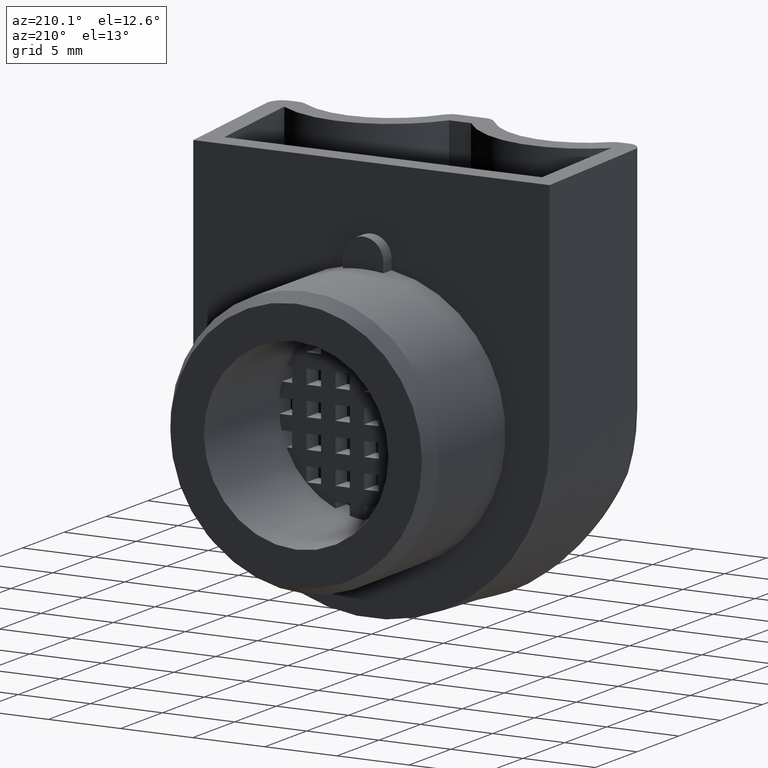
[diagram: clean part render]
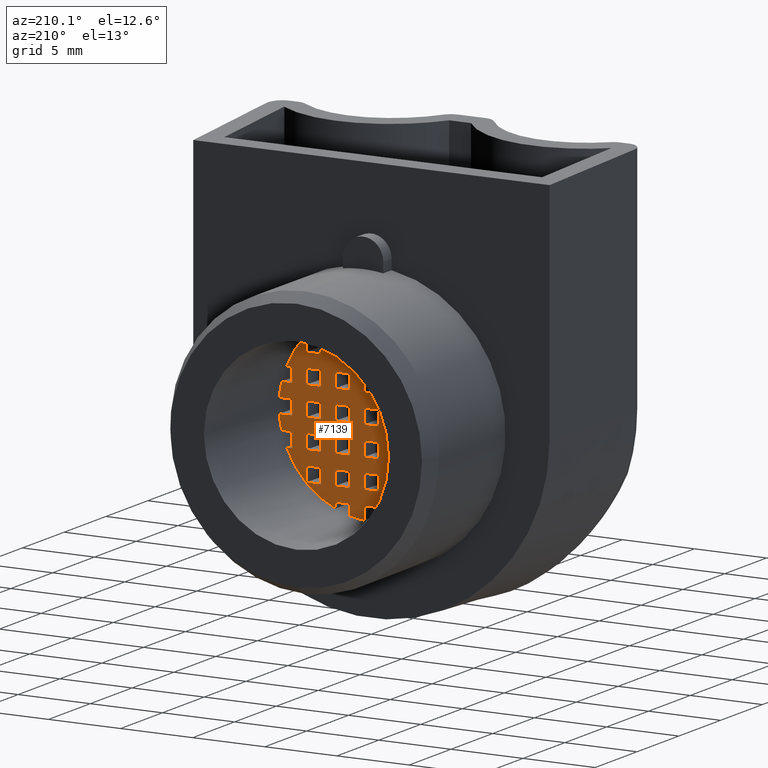
[diagram: same view with one face highlighted and labeled with its STEP entity id]
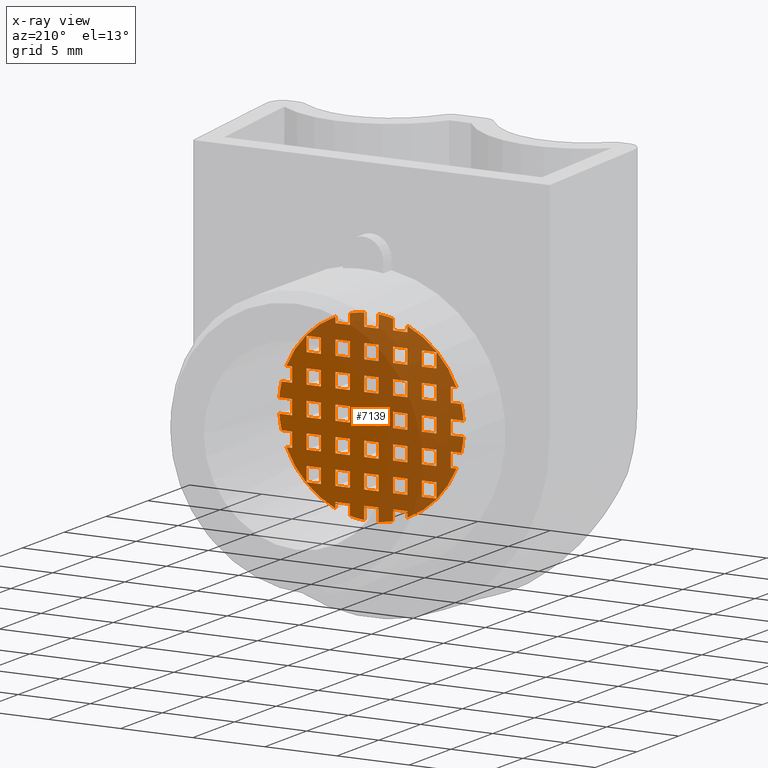
[diagram: x-ray of the same camera — body ghosted, the highlighted face saturated]
A machine part, auxiliary view. The second image highlights one B-rep face of the part: STEP entity #7139.
The next image is the same camera in x-ray: the body ghosted, the highlighted face saturated — about 55% of this face is hidden behind the body in this view.
In plain terms, the highlighted planar face has unit normal (0, 1, -0).
Its self-contained STEP definition (entity closure, byte-faithful):
#27 = CARTESIAN_POINT ( 'NONE',  ( -2.499999999999998700, 0.0000000000000000000, 5.891519328662179000 ) ) ;
#32 = DIRECTION ( 'NONE',  ( -2.220446049250313100E-016, -4.544217445503875200E-016, -1.000000000000000000 ) ) ;
#33 = DIRECTION ( 'NONE',  ( -5.622133538114148000E-016, -1.000000000000000000, -4.544217445503873200E-016 ) ) ;
#34 = CARTESIAN_POINT ( 'NONE',  ( -1.734723475976807100E-015, 0.0000000000000000000, -6.938893903907228400E-015 ) ) ;
#35 = AXIS2_PLACEMENT_3D ( 'NONE', #34, #33, #32 ) ;
#36 = CARTESIAN_POINT ( 'NONE',  ( -0.5000000000000091000, -8.326672684688674100E-014, -6.380438856379712800 ) ) ;
#44 = CIRCLE ( 'NONE', #35, 6.399999999999999500 ) ;
#115 = CARTESIAN_POINT ( 'NONE',  ( -6.221736092120913500, -8.326672684688674100E-014, -1.499999999999987600 ) ) ;
#116 = DIRECTION ( 'NONE',  ( -2.220446049250313100E-016, -4.544217445503875200E-016, -1.000000000000000000 ) ) ;
#117 = DIRECTION ( 'NONE',  ( -5.622133538114148000E-016, -1.000000000000000000, -4.544217445503873200E-016 ) ) ;
#118 = CARTESIAN_POINT ( 'NONE',  ( -1.734723475976807100E-015, 0.0000000000000000000, -6.938893903907228400E-015 ) ) ;
#119 = AXIS2_PLACEMENT_3D ( 'NONE', #118, #117, #116 ) ;
#134 = CIRCLE ( 'NONE', #119, 6.399999999999999500 ) ;
#135 = CARTESIAN_POINT ( 'NONE',  ( -6.380438856379705600, -8.326672684688674100E-014, -0.4999999999999865700 ) ) ;
#253 = CARTESIAN_POINT ( 'NONE',  ( -1.499999999999999600, -8.326672684688674100E-014, -6.221736092120920600 ) ) ;
#254 = CARTESIAN_POINT ( 'NONE',  ( -2.500000000000014200, -8.326672684688674100E-014, -5.891519328662164800 ) ) ;
#255 = DIRECTION ( 'NONE',  ( -2.220446049250313100E-016, -4.544217445503875200E-016, -1.000000000000000000 ) ) ;
#256 = DIRECTION ( 'NONE',  ( -5.622133538114148000E-016, -1.000000000000000000, -4.544217445503873200E-016 ) ) ;
#257 = CARTESIAN_POINT ( 'NONE',  ( -1.734723475976807100E-015, 0.0000000000000000000, -6.938893903907228400E-015 ) ) ;
#258 = AXIS2_PLACEMENT_3D ( 'NONE', #257, #256, #255 ) ;
#259 = CIRCLE ( 'NONE', #258, 6.399999999999999500 ) ;
#260 = CARTESIAN_POINT ( 'NONE',  ( -5.891519328662185200, -8.326672684688674100E-014, -2.499999999999995100 ) ) ;
#297 = CARTESIAN_POINT ( 'NONE',  ( -1.500000000000001300, 0.0000000000000000000, 6.221736092120913500 ) ) ;
#323 = CARTESIAN_POINT ( 'NONE',  ( -1.734723475976807100E-015, 0.0000000000000000000, -6.938893903907228400E-015 ) ) ;
#325 = CARTESIAN_POINT ( 'NONE',  ( -6.221736092120913500, -8.326672684688674100E-014, 1.500000000000001300 ) ) ;
#331 = DIRECTION ( 'NONE',  ( -2.220446049250313100E-016, -4.544217445503875200E-016, -1.000000000000000000 ) ) ;
#332 = DIRECTION ( 'NONE',  ( -5.622133538114148000E-016, -1.000000000000000000, -4.544217445503873200E-016 ) ) ;
#333 = CARTESIAN_POINT ( 'NONE',  ( -1.734723475976807100E-015, 0.0000000000000000000, -6.938893903907228400E-015 ) ) ;
#334 = AXIS2_PLACEMENT_3D ( 'NONE', #333, #332, #331 ) ;
#335 = CIRCLE ( 'NONE', #334, 6.399999999999999500 ) ;
#336 = CARTESIAN_POINT ( 'NONE',  ( -0.4999999999999900100, 0.0000000000000000000, 6.380438856379698500 ) ) ;
#354 = CARTESIAN_POINT ( 'NONE',  ( -5.891519328662168300, -8.326672684688674100E-014, 2.500000000000002200 ) ) ;
#355 = DIRECTION ( 'NONE',  ( -2.220446049250313100E-016, -4.544217445503875200E-016, -1.000000000000000000 ) ) ;
#356 = DIRECTION ( 'NONE',  ( -5.622133538114148000E-016, -1.000000000000000000, -4.544217445503873200E-016 ) ) ;
#357 = CARTESIAN_POINT ( 'NONE',  ( -1.734723475976807100E-015, 0.0000000000000000000, -6.938893903907228400E-015 ) ) ;
#358 = AXIS2_PLACEMENT_3D ( 'NONE', #357, #356, #355 ) ;
#359 = CIRCLE ( 'NONE', #358, 6.399999999999999500 ) ;
#364 = CARTESIAN_POINT ( 'NONE',  ( -6.380438856379698500, -8.326672684688674100E-014, 0.5000000000000004400 ) ) ;
#365 = DIRECTION ( 'NONE',  ( -2.220446049250313100E-016, -4.544217445503875200E-016, -1.000000000000000000 ) ) ;
#366 = DIRECTION ( 'NONE',  ( -5.622133538114148000E-016, -1.000000000000000000, -4.544217445503873200E-016 ) ) ;
#367 = AXIS2_PLACEMENT_3D ( 'NONE', #323, #366, #365 ) ;
#368 = CIRCLE ( 'NONE', #367, 6.399999999999999500 ) ;
#929 = VERTEX_POINT ( 'NONE', #1005 ) ;
#931 = VERTEX_POINT ( 'NONE', #1006 ) ;
#951 = VERTEX_POINT ( 'NONE', #1281 ) ;
#957 = VERTEX_POINT ( 'NONE', #1258 ) ;
#958 = EDGE_CURVE ( 'NONE', #929, #931, #1312, .T. ) ;
#961 = EDGE_CURVE ( 'NONE', #951, #965, #1271, .T. ) ;
#964 = VERTEX_POINT ( 'NONE', #1250 ) ;
#965 = VERTEX_POINT ( 'NONE', #1249 ) ;
#1005 = CARTESIAN_POINT ( 'NONE',  ( 2.500000000000000400, 0.0000000000000000000, -5.891519328662179000 ) ) ;
#1006 = CARTESIAN_POINT ( 'NONE',  ( 5.891519328662175400, 8.326672684688674100E-014, -2.499999999999967600 ) ) ;
#1239 = DIRECTION ( 'NONE',  ( -2.220446049250313100E-016, -4.544217445503875200E-016, -1.000000000000000000 ) ) ;
#1240 = DIRECTION ( 'NONE',  ( -5.622133538114148000E-016, -1.000000000000000000, -4.544217445503873200E-016 ) ) ;
#1241 = CARTESIAN_POINT ( 'NONE',  ( -1.734723475976807100E-015, 0.0000000000000000000, -6.938893903907228400E-015 ) ) ;
#1242 = AXIS2_PLACEMENT_3D ( 'NONE', #1241, #1240, #1239 ) ;
#1243 = CIRCLE ( 'NONE', #1242, 6.399999999999999500 ) ;
#1249 = CARTESIAN_POINT ( 'NONE',  ( 6.380438856379712800, 0.0000000000000000000, -0.4999999999999935100 ) ) ;
#1250 = CARTESIAN_POINT ( 'NONE',  ( 1.499999999999997800, -8.326672684688674100E-014, -6.221736092120941000 ) ) ;
#1258 = CARTESIAN_POINT ( 'NONE',  ( 0.4999999999999882900, -8.326672684688674100E-014, -6.380438856379712800 ) ) ;
#1267 = DIRECTION ( 'NONE',  ( -2.220446049250313100E-016, -4.544217445503875200E-016, -1.000000000000000000 ) ) ;
#1268 = DIRECTION ( 'NONE',  ( -5.622133538114148000E-016, -1.000000000000000000, -4.544217445503873200E-016 ) ) ;
#1269 = CARTESIAN_POINT ( 'NONE',  ( -1.734723475976807100E-015, 0.0000000000000000000, -6.938893903907228400E-015 ) ) ;
#1270 = AXIS2_PLACEMENT_3D ( 'NONE', #1269, #1268, #1267 ) ;
#1271 = CIRCLE ( 'NONE', #1270, 6.399999999999999500 ) ;
#1281 = CARTESIAN_POINT ( 'NONE',  ( 6.221736092120931300, 0.0000000000000000000, -1.499999999999959600 ) ) ;
#1311 = CARTESIAN_POINT ( 'NONE',  ( -1.734723475976807100E-015, 0.0000000000000000000, -6.938893903907228400E-015 ) ) ;
#1312 = CIRCLE ( 'NONE', #1327, 6.399999999999999500 ) ;
#1325 = DIRECTION ( 'NONE',  ( -2.220446049250313100E-016, -4.544217445503875200E-016, -1.000000000000000000 ) ) ;
#1326 = DIRECTION ( 'NONE',  ( -5.622133538114148000E-016, -1.000000000000000000, -4.544217445503873200E-016 ) ) ;
#1327 = AXIS2_PLACEMENT_3D ( 'NONE', #1311, #1326, #1325 ) ;
#2555 = EDGE_CURVE ( 'NONE', #957, #964, #1243, .T. ) ;
#3786 = LINE ( 'NONE', #4102, #4265 ) ;
#3791 = CARTESIAN_POINT ( 'NONE',  ( -2.499999999999998700, 0.0000000000000000000, 1.500000000000001300 ) ) ;
#3949 = CARTESIAN_POINT ( 'NONE',  ( 3.500000000000006700, 0.0000000000000000000, -1.500000000000022200 ) ) ;
#3950 = DIRECTION ( 'NONE',  ( 1.000000000000000000, 5.691522477153217300E-016, 2.220446049250311600E-016 ) ) ;
#3951 = VECTOR ( 'NONE', #3950, 1000.000000000000000 ) ;
#3952 = CARTESIAN_POINT ( 'NONE',  ( 4.500000000000000900, 0.0000000000000000000, -1.499999999999994400 ) ) ;
#3953 = LINE ( 'NONE', #3952, #3951 ) ;
#3978 = CARTESIAN_POINT ( 'NONE',  ( 6.380438856379702100, 0.0000000000000000000, 0.5000000000000143200 ) ) ;
#3979 = CARTESIAN_POINT ( 'NONE',  ( 2.500000000000000400, 0.0000000000000000000, -2.500000000000016000 ) ) ;
#3980 = DIRECTION ( 'NONE',  ( -1.000000000000000000, -5.691522477153217300E-016, -2.220446049250311600E-016 ) ) ;
#3981 = VECTOR ( 'NONE', #3980, 1000.000000000000000 ) ;
#3982 = CARTESIAN_POINT ( 'NONE',  ( 2.500000000000000400, 0.0000000000000000000, -2.500000000000016000 ) ) ;
#3983 = LINE ( 'NONE', #3982, #3981 ) ;
#3984 = DIRECTION ( 'NONE',  ( 2.220446049250313100E-016, 4.544217445503875200E-016, 1.000000000000000000 ) ) ;
#3985 = VECTOR ( 'NONE', #3984, 1000.000000000000000 ) ;
#3986 = CARTESIAN_POINT ( 'NONE',  ( 3.499999999999999600, 0.0000000000000000000, -2.500000000000002200 ) ) ;
#3987 = LINE ( 'NONE', #3986, #3985 ) ;
#4032 = CARTESIAN_POINT ( 'NONE',  ( 0.5000000000000004400, 0.0000000000000000000, -4.500000000000017800 ) ) ;
#4033 = LINE ( 'NONE', #4032, #4063 ) ;
#4034 = CARTESIAN_POINT ( 'NONE',  ( -0.5000000000000004400, -8.326672684688674100E-014, -4.500000000000010700 ) ) ;
#4035 = CARTESIAN_POINT ( 'NONE',  ( 0.5000000000000004400, 0.0000000000000000000, -4.500000000000017800 ) ) ;
#4036 = DIRECTION ( 'NONE',  ( -1.000000000000000000, -5.691522477153217300E-016, -2.220446049250311600E-016 ) ) ;
#4037 = VECTOR ( 'NONE', #4036, 1000.000000000000000 ) ;
#4038 = CARTESIAN_POINT ( 'NONE',  ( 0.5000000000000004400, 0.0000000000000000000, -4.500000000000017800 ) ) ;
#4039 = LINE ( 'NONE', #4038, #4037 ) ;
#4040 = DIRECTION ( 'NONE',  ( 2.220446049250313100E-016, 4.544217445503875200E-016, 1.000000000000000000 ) ) ;
#4041 = VECTOR ( 'NONE', #4040, 1000.000000000000000 ) ;
#4042 = CARTESIAN_POINT ( 'NONE',  ( 1.500000000000004900, 0.0000000000000000000, -4.500000000000032000 ) ) ;
#4043 = LINE ( 'NONE', #4042, #4041 ) ;
#4062 = DIRECTION ( 'NONE',  ( -2.220446049250313100E-016, -4.544217445503875200E-016, -1.000000000000000000 ) ) ;
#4063 = VECTOR ( 'NONE', #4062, 1000.000000000000000 ) ;
#4101 = DIRECTION ( 'NONE',  ( -1.000000000000000000, -5.691522477153217300E-016, -5.551115123125778800E-016 ) ) ;
#4102 = CARTESIAN_POINT ( 'NONE',  ( -3.499999999999996000, -8.326672684688674100E-014, 4.500000000000003600 ) ) ;
#4105 = CARTESIAN_POINT ( 'NONE',  ( 4.500000000000000900, 0.0000000000000000000, -1.499999999999994400 ) ) ;
#4106 = DIRECTION ( 'NONE',  ( -2.220446049250313100E-016, -4.544217445503875200E-016, -1.000000000000000000 ) ) ;
#4107 = VECTOR ( 'NONE', #4106, 1000.000000000000000 ) ;
#4108 = CARTESIAN_POINT ( 'NONE',  ( 4.500000000000000900, 0.0000000000000000000, -2.499999999999981300 ) ) ;
#4109 = LINE ( 'NONE', #4108, #4107 ) ;
#4110 = CARTESIAN_POINT ( 'NONE',  ( 3.499999999999999600, 0.0000000000000000000, -2.500000000000002200 ) ) ;
#4113 = CARTESIAN_POINT ( 'NONE',  ( 0.4999999999999848500, 0.0000000000000000000, -3.500000000000037700 ) ) ;
#4146 = VECTOR ( 'NONE', #4255, 1000.000000000000000 ) ;
#4147 = CARTESIAN_POINT ( 'NONE',  ( -0.5000000000000161000, 0.0000000000000000000, -2.500000000000002200 ) ) ;
#4148 = LINE ( 'NONE', #4147, #4146 ) ;
#4149 = CARTESIAN_POINT ( 'NONE',  ( 1.500000000000003100, 0.0000000000000000000, -2.500000000000023100 ) ) ;
#4154 = CARTESIAN_POINT ( 'NONE',  ( -0.5000000000000073300, -8.326672684688674100E-014, -5.500000000000005300 ) ) ;
#4155 = DIRECTION ( 'NONE',  ( 1.000000000000000000, 5.726216946672753500E-016, 2.220446049250311600E-016 ) ) ;
#4156 = VECTOR ( 'NONE', #4155, 1000.000000000000000 ) ;
#4157 = CARTESIAN_POINT ( 'NONE',  ( -6.221736092120913500, -8.326672684688674100E-014, -1.499999999999987600 ) ) ;
#4158 = LINE ( 'NONE', #4157, #4156 ) ;
#4159 = DIRECTION ( 'NONE',  ( -2.220446049250313100E-016, -4.544217445503875200E-016, -1.000000000000000000 ) ) ;
#4160 = VECTOR ( 'NONE', #4159, 1000.000000000000000 ) ;
#4161 = CARTESIAN_POINT ( 'NONE',  ( -5.500000000000005300, -8.326672684688674100E-014, -2.499999999999988500 ) ) ;
#4162 = LINE ( 'NONE', #4161, #4160 ) ;
#4163 = CARTESIAN_POINT ( 'NONE',  ( -5.499999999999998200, -8.326672684688674100E-014, -1.499999999999987600 ) ) ;
#4164 = CARTESIAN_POINT ( 'NONE',  ( -2.500000000000012400, -8.326672684688674100E-014, -3.500000000000010200 ) ) ;
#4165 = CIRCLE ( 'NONE', #4204, 6.399999999999999500 ) ;
#4170 = DIRECTION ( 'NONE',  ( -5.622133538114148000E-016, -1.000000000000000000, -4.544217445503873200E-016 ) ) ;
#4171 = CARTESIAN_POINT ( 'NONE',  ( -1.734723475976807100E-015, 0.0000000000000000000, -6.938893903907228400E-015 ) ) ;
#4172 = AXIS2_PLACEMENT_3D ( 'NONE', #4171, #4170, #4226 ) ;
#4173 = CIRCLE ( 'NONE', #4172, 6.399999999999999500 ) ;
#4174 = DIRECTION ( 'NONE',  ( -2.220446049250313100E-016, -4.544217445503875200E-016, -1.000000000000000000 ) ) ;
#4175 = VECTOR ( 'NONE', #4174, 1000.000000000000000 ) ;
#4176 = CARTESIAN_POINT ( 'NONE',  ( 2.500000000000000400, 0.0000000000000000000, -2.500000000000016000 ) ) ;
#4177 = LINE ( 'NONE', #4176, #4175 ) ;
#4178 = DIRECTION ( 'NONE',  ( 2.220446049250313100E-016, 4.544217445503875200E-016, 1.000000000000000000 ) ) ;
#4179 = VECTOR ( 'NONE', #4178, 1000.000000000000000 ) ;
#4180 = CARTESIAN_POINT ( 'NONE',  ( 3.500000000000006700, 0.0000000000000000000, -4.500000000000024900 ) ) ;
#4181 = LINE ( 'NONE', #4180, #4179 ) ;
#4182 = DIRECTION ( 'NONE',  ( -2.220446049250313100E-016, -4.544217445503875200E-016, -1.000000000000000000 ) ) ;
#4183 = VECTOR ( 'NONE', #4182, 1000.000000000000000 ) ;
#4184 = CARTESIAN_POINT ( 'NONE',  ( 4.500000000000014200, 0.0000000000000000000, -4.499999999999983100 ) ) ;
#4185 = LINE ( 'NONE', #4184, #4183 ) ;
#4186 = CARTESIAN_POINT ( 'NONE',  ( -1.500000000000001300, 0.0000000000000000000, -1.500000000000001300 ) ) ;
#4187 = DIRECTION ( 'NONE',  ( -2.220446049250313100E-016, -4.544217445503875200E-016, -1.000000000000000000 ) ) ;
#4188 = VECTOR ( 'NONE', #4187, 1000.000000000000000 ) ;
#4189 = CARTESIAN_POINT ( 'NONE',  ( -1.500000000000004900, 0.0000000000000000000, -2.500000000000009300 ) ) ;
#4190 = LINE ( 'NONE', #4189, #4188 ) ;
#4191 = CARTESIAN_POINT ( 'NONE',  ( -1.500000000000004900, 0.0000000000000000000, -2.500000000000009300 ) ) ;
#4192 = DIRECTION ( 'NONE',  ( -1.000000000000000000, -5.691522477153217300E-016, -2.220446049250311600E-016 ) ) ;
#4193 = VECTOR ( 'NONE', #4192, 1000.000000000000000 ) ;
#4194 = CARTESIAN_POINT ( 'NONE',  ( -2.500000000000009300, -8.326672684688674100E-014, -2.500000000000002200 ) ) ;
#4195 = LINE ( 'NONE', #4194, #4193 ) ;
#4196 = CARTESIAN_POINT ( 'NONE',  ( -0.5000000000000108800, 0.0000000000000000000, -3.500000000000003100 ) ) ;
#4200 = CARTESIAN_POINT ( 'NONE',  ( 0.4999999999999970000, 0.0000000000000000000, 6.380438856379705600 ) ) ;
#4201 = DIRECTION ( 'NONE',  ( -2.220446049250313100E-016, -4.544217445503875200E-016, -1.000000000000000000 ) ) ;
#4202 = DIRECTION ( 'NONE',  ( -5.622133538114148000E-016, -1.000000000000000000, -4.544217445503873200E-016 ) ) ;
#4203 = CARTESIAN_POINT ( 'NONE',  ( -1.734723475976807100E-015, 0.0000000000000000000, -6.938893903907228400E-015 ) ) ;
#4204 = AXIS2_PLACEMENT_3D ( 'NONE', #4203, #4202, #4201 ) ;
#4205 = CARTESIAN_POINT ( 'NONE',  ( 3.500000000000006700, 0.0000000000000000000, -4.500000000000024900 ) ) ;
#4206 = CARTESIAN_POINT ( 'NONE',  ( 4.500000000000014200, 0.0000000000000000000, -4.499999999999983100 ) ) ;
#4207 = DIRECTION ( 'NONE',  ( -1.000000000000000000, -5.691522477153217300E-016, -2.220446049250311600E-016 ) ) ;
#4208 = VECTOR ( 'NONE', #4207, 1000.000000000000000 ) ;
#4209 = CARTESIAN_POINT ( 'NONE',  ( 4.500000000000014200, 0.0000000000000000000, -4.499999999999983100 ) ) ;
#4210 = LINE ( 'NONE', #4209, #4208 ) ;
#4211 = CARTESIAN_POINT ( 'NONE',  ( -2.500000000000007500, -8.326672684688674100E-014, -4.499999999999997300 ) ) ;
#4212 = DIRECTION ( 'NONE',  ( 2.220446049250313100E-016, 4.544217445503875200E-016, 1.000000000000000000 ) ) ;
#4213 = VECTOR ( 'NONE', #4212, 1000.000000000000000 ) ;
#4214 = CARTESIAN_POINT ( 'NONE',  ( -2.500000000000007500, -8.326672684688674100E-014, -4.499999999999997300 ) ) ;
#4215 = LINE ( 'NONE', #4214, #4213 ) ;
#4216 = DIRECTION ( 'NONE',  ( 1.000000000000000000, 5.691522477153217300E-016, 2.220446049250311600E-016 ) ) ;
#4217 = VECTOR ( 'NONE', #4216, 1000.000000000000000 ) ;
#4218 = CARTESIAN_POINT ( 'NONE',  ( 0.4999999999999935100, -8.326672684688674100E-014, -5.500000000000032900 ) ) ;
#4219 = LINE ( 'NONE', #4218, #4217 ) ;
#4220 = CARTESIAN_POINT ( 'NONE',  ( 0.4999999999999935100, -8.326672684688674100E-014, -5.500000000000032900 ) ) ;
#4221 = DIRECTION ( 'NONE',  ( -2.220446049250313100E-016, -4.544217445503875200E-016, -1.000000000000000000 ) ) ;
#4222 = VECTOR ( 'NONE', #4221, 1000.000000000000000 ) ;
#4223 = CARTESIAN_POINT ( 'NONE',  ( 0.4999999999999882900, -8.326672684688674100E-014, -6.380438856379712800 ) ) ;
#4224 = LINE ( 'NONE', #4223, #4222 ) ;
#4225 = CARTESIAN_POINT ( 'NONE',  ( 2.500000000000002200, 0.0000000000000000000, 5.891519328662164800 ) ) ;
#4226 = DIRECTION ( 'NONE',  ( -2.220446049250313100E-016, -4.544217445503875200E-016, -1.000000000000000000 ) ) ;
#4227 = CARTESIAN_POINT ( 'NONE',  ( 2.499999999999993300, 0.0000000000000000000, -3.500000000000016900 ) ) ;
#4228 = DIRECTION ( 'NONE',  ( -2.220446049250313100E-016, -4.544217445503875200E-016, -1.000000000000000000 ) ) ;
#4229 = VECTOR ( 'NONE', #4228, 1000.000000000000000 ) ;
#4230 = CARTESIAN_POINT ( 'NONE',  ( 2.500000000000000400, 0.0000000000000000000, -4.500000000000003600 ) ) ;
#4231 = LINE ( 'NONE', #4230, #4229 ) ;
#4232 = DIRECTION ( 'NONE',  ( 1.000000000000000000, 5.691522477153217300E-016, 2.220446049250311600E-016 ) ) ;
#4233 = VECTOR ( 'NONE', #4232, 1000.000000000000000 ) ;
#4234 = CARTESIAN_POINT ( 'NONE',  ( 4.499999999999993800, 0.0000000000000000000, -3.499999999999996000 ) ) ;
#4235 = LINE ( 'NONE', #4234, #4233 ) ;
#4236 = DIRECTION ( 'NONE',  ( -2.220446049250313100E-016, -4.544217445503875200E-016, -1.000000000000000000 ) ) ;
#4237 = VECTOR ( 'NONE', #4236, 1000.000000000000000 ) ;
#4238 = CARTESIAN_POINT ( 'NONE',  ( 0.4999999999999935100, 0.0000000000000000000, -2.500000000000016000 ) ) ;
#4239 = LINE ( 'NONE', #4238, #4237 ) ;
#4240 = DIRECTION ( 'NONE',  ( 1.000000000000000000, 5.691522477153217300E-016, 2.220446049250311600E-016 ) ) ;
#4241 = VECTOR ( 'NONE', #4240, 1000.000000000000000 ) ;
#4242 = CARTESIAN_POINT ( 'NONE',  ( -6.380438856379698500, -8.326672684688674100E-014, 0.5000000000000004400 ) ) ;
#4243 = LINE ( 'NONE', #4242, #4241 ) ;
#4244 = CARTESIAN_POINT ( 'NONE',  ( -5.499999999999998200, -8.326672684688674100E-014, 0.5000000000000004400 ) ) ;
#4245 = CARTESIAN_POINT ( 'NONE',  ( -5.500000000000001800, 0.0000000000000000000, 1.500000000000001300 ) ) ;
#4246 = DIRECTION ( 'NONE',  ( -1.000000000000000000, -5.726216946672753500E-016, -2.220446049250311600E-016 ) ) ;
#4247 = VECTOR ( 'NONE', #4246, 1000.000000000000000 ) ;
#4248 = CARTESIAN_POINT ( 'NONE',  ( -6.221736092120913500, -8.326672684688674100E-014, 1.500000000000001300 ) ) ;
#4249 = LINE ( 'NONE', #4248, #4247 ) ;
#4250 = DIRECTION ( 'NONE',  ( -1.000000000000000000, -5.691522477153217300E-016, -2.220446049250311600E-016 ) ) ;
#4251 = VECTOR ( 'NONE', #4250, 1000.000000000000000 ) ;
#4252 = CARTESIAN_POINT ( 'NONE',  ( -6.380438856379705600, -8.326672684688674100E-014, -0.4999999999999865700 ) ) ;
#4253 = LINE ( 'NONE', #4252, #4251 ) ;
#4254 = CARTESIAN_POINT ( 'NONE',  ( -1.500000000000001300, -8.326672684688674100E-014, -4.500000000000010700 ) ) ;
#4255 = DIRECTION ( 'NONE',  ( 2.220446049250313100E-016, 4.544217445503875200E-016, 1.000000000000000000 ) ) ;
#4259 = VECTOR ( 'NONE', #4101, 1000.000000000000000 ) ;
#4260 = DIRECTION ( 'NONE',  ( -2.220446049250313100E-016, -4.544217445503875200E-016, -1.000000000000000000 ) ) ;
#4261 = DIRECTION ( 'NONE',  ( 1.000000000000000000, 5.691522477153217300E-016, 2.220446049250311600E-016 ) ) ;
#4262 = VECTOR ( 'NONE', #4261, 1000.000000000000000 ) ;
#4263 = CARTESIAN_POINT ( 'NONE',  ( -2.500000000000012400, -8.326672684688674100E-014, -3.500000000000010200 ) ) ;
#4264 = LINE ( 'NONE', #4263, #4262 ) ;
#4265 = VECTOR ( 'NONE', #4260, 1000.000000000000000 ) ;
#4266 = CARTESIAN_POINT ( 'NONE',  ( -1.500000000000006400, -8.326672684688674100E-014, -3.500000000000003100 ) ) ;
#4267 = CARTESIAN_POINT ( 'NONE',  ( -0.5000000000000161000, 0.0000000000000000000, -2.500000000000002200 ) ) ;
#4268 = CARTESIAN_POINT ( 'NONE',  ( 0.4999999999999935100, 0.0000000000000000000, -2.500000000000016000 ) ) ;
#4269 = CARTESIAN_POINT ( 'NONE',  ( 4.499999999999993800, 0.0000000000000000000, -3.499999999999996000 ) ) ;
#4270 = CARTESIAN_POINT ( 'NONE',  ( 1.500000000000011800, 0.0000000000000000000, 6.221736092120913500 ) ) ;
#4275 = DIRECTION ( 'NONE',  ( -2.220446049250313100E-016, -4.544217445503875200E-016, -1.000000000000000000 ) ) ;
#4276 = DIRECTION ( 'NONE',  ( -5.622133538114148000E-016, -1.000000000000000000, -4.544217445503873200E-016 ) ) ;
#4277 = CARTESIAN_POINT ( 'NONE',  ( -1.734723475976807100E-015, 0.0000000000000000000, -6.938893903907228400E-015 ) ) ;
#4278 = AXIS2_PLACEMENT_3D ( 'NONE', #4277, #4276, #4275 ) ;
#4279 = CIRCLE ( 'NONE', #4278, 6.399999999999999500 ) ;
#4280 = CARTESIAN_POINT ( 'NONE',  ( -3.500000000000001300, -8.326672684688674100E-014, -4.499999999999997300 ) ) ;
#4281 = DIRECTION ( 'NONE',  ( -1.000000000000000000, -5.691522477153217300E-016, -2.220446049250311600E-016 ) ) ;
#4282 = VECTOR ( 'NONE', #4281, 1000.000000000000000 ) ;
#4283 = CARTESIAN_POINT ( 'NONE',  ( -2.500000000000007500, -8.326672684688674100E-014, -4.499999999999997300 ) ) ;
#4284 = LINE ( 'NONE', #4283, #4282 ) ;
#4285 = DIRECTION ( 'NONE',  ( -1.000000000000000000, -5.691522477153217300E-016, -2.220446049250311600E-016 ) ) ;
#4286 = VECTOR ( 'NONE', #4285, 1000.000000000000000 ) ;
#4287 = CARTESIAN_POINT ( 'NONE',  ( 0.4999999999999935100, 0.0000000000000000000, -2.500000000000016000 ) ) ;
#4288 = LINE ( 'NONE', #4287, #4286 ) ;
#4289 = CARTESIAN_POINT ( 'NONE',  ( -0.5000000000000056600, 0.0000000000000000000, -1.500000000000001300 ) ) ;
#4290 = DIRECTION ( 'NONE',  ( -1.000000000000000000, -5.691522477153217300E-016, -2.220446049250311600E-016 ) ) ;
#4291 = VECTOR ( 'NONE', #4290, 1000.000000000000000 ) ;
#4292 = CARTESIAN_POINT ( 'NONE',  ( -4.500000000000000900, -8.326672684688674100E-014, -4.499999999999990200 ) ) ;
#4293 = LINE ( 'NONE', #4292, #4291 ) ;
#4294 = CARTESIAN_POINT ( 'NONE',  ( -4.500000000000002700, -8.326672684688674100E-014, -3.499999999999989300 ) ) ;
#4295 = CARTESIAN_POINT ( 'NONE',  ( -4.500000000000000900, -8.326672684688674100E-014, -4.499999999999990200 ) ) ;
#4296 = DIRECTION ( 'NONE',  ( 2.220446049250313100E-016, 4.544217445503875200E-016, 1.000000000000000000 ) ) ;
#4297 = VECTOR ( 'NONE', #4296, 1000.000000000000000 ) ;
#4298 = CARTESIAN_POINT ( 'NONE',  ( -4.500000000000000900, -8.326672684688674100E-014, -4.499999999999990200 ) ) ;
#4299 = LINE ( 'NONE', #4298, #4297 ) ;
#4300 = DIRECTION ( 'NONE',  ( 1.000000000000000000, 5.691522477153217300E-016, -2.220446049250311600E-016 ) ) ;
#4301 = VECTOR ( 'NONE', #4300, 1000.000000000000000 ) ;
#4302 = CARTESIAN_POINT ( 'NONE',  ( -2.500000000000004000, 0.0000000000000000000, -1.500000000000001300 ) ) ;
#4303 = LINE ( 'NONE', #4302, #4301 ) ;
#4304 = DIRECTION ( 'NONE',  ( -1.110223024625156500E-016, 4.544217445503873200E-016, 1.000000000000000000 ) ) ;
#4305 = VECTOR ( 'NONE', #4304, 1000.000000000000000 ) ;
#4306 = CARTESIAN_POINT ( 'NONE',  ( -0.5000000000000004400, -8.326672684688674100E-014, -4.500000000000010700 ) ) ;
#4307 = LINE ( 'NONE', #4306, #4305 ) ;
#4308 = DIRECTION ( 'NONE',  ( 1.000000000000000000, 5.691522477153217300E-016, 2.220446049250311600E-016 ) ) ;
#4309 = VECTOR ( 'NONE', #4308, 1000.000000000000000 ) ;
#4310 = CARTESIAN_POINT ( 'NONE',  ( -4.500000000000002700, -8.326672684688674100E-014, -3.499999999999989300 ) ) ;
#4311 = LINE ( 'NONE', #4310, #4309 ) ;
#4346 = CARTESIAN_POINT ( 'NONE',  ( -3.500000000000003100, -8.326672684688674100E-014, -3.499999999999996000 ) ) ;
#4347 = DIRECTION ( 'NONE',  ( -2.220446049250313100E-016, -4.544217445503875200E-016, -1.000000000000000000 ) ) ;
#4348 = VECTOR ( 'NONE', #4347, 1000.000000000000000 ) ;
#4349 = CARTESIAN_POINT ( 'NONE',  ( -3.500000000000001300, -8.326672684688674100E-014, -4.499999999999997300 ) ) ;
#4350 = LINE ( 'NONE', #4349, #4348 ) ;
#4351 = DIRECTION ( 'NONE',  ( 1.000000000000000000, 5.691522477153217300E-016, 2.220446049250311600E-016 ) ) ;
#4352 = VECTOR ( 'NONE', #4351, 1000.000000000000000 ) ;
#4353 = CARTESIAN_POINT ( 'NONE',  ( 0.4999999999999848500, 0.0000000000000000000, -3.500000000000037700 ) ) ;
#4354 = LINE ( 'NONE', #4353, #4352 ) ;
#4355 = CARTESIAN_POINT ( 'NONE',  ( -2.500000000000012400, -8.326672684688674100E-014, -5.500000000000005300 ) ) ;
#4356 = DIRECTION ( 'NONE',  ( 1.000000000000000000, 5.691522477153217300E-016, 2.220446049250311600E-016 ) ) ;
#4357 = VECTOR ( 'NONE', #4356, 1000.000000000000000 ) ;
#4358 = CARTESIAN_POINT ( 'NONE',  ( -2.500000000000012400, -8.326672684688674100E-014, -5.500000000000005300 ) ) ;
#4359 = LINE ( 'NONE', #4358, #4357 ) ;
#4360 = CARTESIAN_POINT ( 'NONE',  ( 0.5000000000000004400, 0.0000000000000000000, -1.500000000000001300 ) ) ;
#4361 = DIRECTION ( 'NONE',  ( 2.220446049250313100E-016, 4.544217445503875200E-016, 1.000000000000000000 ) ) ;
#4362 = VECTOR ( 'NONE', #4361, 1000.000000000000000 ) ;
#4363 = CARTESIAN_POINT ( 'NONE',  ( 1.500000000000003100, 0.0000000000000000000, -2.500000000000023100 ) ) ;
#4364 = LINE ( 'NONE', #4363, #4362 ) ;
#4365 = DIRECTION ( 'NONE',  ( 1.000000000000000000, 5.691522477153217300E-016, 5.551115123125778800E-016 ) ) ;
#4366 = VECTOR ( 'NONE', #4365, 1000.000000000000000 ) ;
#4367 = CARTESIAN_POINT ( 'NONE',  ( 2.500000000000005800, 0.0000000000000000000, -1.500000000000029100 ) ) ;
#4368 = LINE ( 'NONE', #4367, #4366 ) ;
#4370 = DIRECTION ( 'NONE',  ( 2.220446049250313100E-016, 4.544217445503875200E-016, 1.000000000000000000 ) ) ;
#4371 = VECTOR ( 'NONE', #4370, 1000.000000000000000 ) ;
#4372 = CARTESIAN_POINT ( 'NONE',  ( -2.500000000000009300, -8.326672684688674100E-014, -2.500000000000002200 ) ) ;
#4373 = LINE ( 'NONE', #4372, #4371 ) ;
#4374 = LINE ( 'NONE', #4393, #4392 ) ;
#4375 = CARTESIAN_POINT ( 'NONE',  ( -0.5000000000000073300, 0.0000000000000000000, 5.500000000000005300 ) ) ;
#4376 = DIRECTION ( 'NONE',  ( -1.000000000000000000, -5.691522477153217300E-016, -2.220446049250311600E-016 ) ) ;
#4377 = VECTOR ( 'NONE', #4376, 1000.000000000000000 ) ;
#4378 = CARTESIAN_POINT ( 'NONE',  ( 2.500000000000009300, 0.0000000000000000000, 5.499999999999991100 ) ) ;
#4379 = CARTESIAN_POINT ( 'NONE',  ( 5.500000000000015100, 0.0000000000000000000, 2.499999999999995100 ) ) ;
#4380 = DIRECTION ( 'NONE',  ( 1.000000000000000000, 5.726216946672753500E-016, 2.220446049250311600E-016 ) ) ;
#4381 = VECTOR ( 'NONE', #4380, 1000.000000000000000 ) ;
#4382 = CARTESIAN_POINT ( 'NONE',  ( 6.221736092120931300, 0.0000000000000000000, -1.499999999999959600 ) ) ;
#4383 = LINE ( 'NONE', #4382, #4381 ) ;
#4384 = DIRECTION ( 'NONE',  ( -2.220446049250313100E-016, -4.544217445503875200E-016, -1.000000000000000000 ) ) ;
#4385 = VECTOR ( 'NONE', #4384, 1000.000000000000000 ) ;
#4386 = CARTESIAN_POINT ( 'NONE',  ( -1.500000000000001300, -8.326672684688674100E-014, -4.500000000000010700 ) ) ;
#4387 = LINE ( 'NONE', #4386, #4385 ) ;
#4388 = LINE ( 'NONE', #4378, #4377 ) ;
#4389 = CARTESIAN_POINT ( 'NONE',  ( 5.500000000000015100, 0.0000000000000000000, 1.500000000000022200 ) ) ;
#4390 = CARTESIAN_POINT ( 'NONE',  ( 0.5000000000000143200, 0.0000000000000000000, 5.500000000000005300 ) ) ;
#4391 = DIRECTION ( 'NONE',  ( -1.000000000000000000, -5.691522477153217300E-016, -2.220446049250311600E-016 ) ) ;
#4392 = VECTOR ( 'NONE', #4391, 1000.000000000000000 ) ;
#4393 = CARTESIAN_POINT ( 'NONE',  ( 0.5000000000000143200, 0.0000000000000000000, 5.500000000000005300 ) ) ;
#4394 = DIRECTION ( 'NONE',  ( -2.220446049250313100E-016, -4.544217445503875200E-016, -1.000000000000000000 ) ) ;
#4395 = VECTOR ( 'NONE', #4394, 1000.000000000000000 ) ;
#4396 = CARTESIAN_POINT ( 'NONE',  ( -5.499999999999998200, -8.326672684688674100E-014, 0.5000000000000004400 ) ) ;
#4397 = LINE ( 'NONE', #4396, #4395 ) ;
#4398 = LINE ( 'NONE', #4471, #4470 ) ;
#4399 = CARTESIAN_POINT ( 'NONE',  ( 2.500000000000000400, 0.0000000000000000000, -4.500000000000003600 ) ) ;
#4400 = LINE ( 'NONE', #4399, #4438 ) ;
#4401 = DIRECTION ( 'NONE',  ( -2.220446049250313100E-016, -4.544217445503875200E-016, -1.000000000000000000 ) ) ;
#4402 = VECTOR ( 'NONE', #4401, 1000.000000000000000 ) ;
#4403 = CARTESIAN_POINT ( 'NONE',  ( -5.500000000000001800, 0.0000000000000000000, 2.500000000000002200 ) ) ;
#4404 = LINE ( 'NONE', #4403, #4402 ) ;
#4405 = DIRECTION ( 'NONE',  ( 1.000000000000000000, 5.691522477153217300E-016, 2.220446049250311600E-016 ) ) ;
#4406 = VECTOR ( 'NONE', #4405, 1000.000000000000000 ) ;
#4407 = CARTESIAN_POINT ( 'NONE',  ( 2.499999999999993300, 0.0000000000000000000, -3.500000000000016900 ) ) ;
#4408 = LINE ( 'NONE', #4407, #4406 ) ;
#4409 = CARTESIAN_POINT ( 'NONE',  ( 1.500000000000004900, 0.0000000000000000000, -1.500000000000015100 ) ) ;
#4410 = CARTESIAN_POINT ( 'NONE',  ( 2.500000000000005800, 0.0000000000000000000, -1.500000000000029100 ) ) ;
#4411 = CARTESIAN_POINT ( 'NONE',  ( -5.500000000000001800, 0.0000000000000000000, 2.500000000000002200 ) ) ;
#4412 = CARTESIAN_POINT ( 'NONE',  ( -1.500000000000001300, 0.0000000000000000000, 5.500000000000005300 ) ) ;
#4413 = DIRECTION ( 'NONE',  ( -1.000000000000000000, -5.691522477153217300E-016, -2.220446049250311600E-016 ) ) ;
#4414 = VECTOR ( 'NONE', #4413, 1000.000000000000000 ) ;
#4415 = CARTESIAN_POINT ( 'NONE',  ( -2.500000000000005800, 0.0000000000000000000, 5.500000000000005300 ) ) ;
#4416 = LINE ( 'NONE', #4415, #4414 ) ;
#4417 = VECTOR ( 'NONE', #4449, 1000.000000000000000 ) ;
#4418 = CARTESIAN_POINT ( 'NONE',  ( 5.891519328662175400, 0.0000000000000000000, 2.500000000000009300 ) ) ;
#4419 = LINE ( 'NONE', #4418, #4417 ) ;
#4420 = CARTESIAN_POINT ( 'NONE',  ( 1.500000000000011800, 0.0000000000000000000, 5.499999999999991100 ) ) ;
#4421 = CARTESIAN_POINT ( 'NONE',  ( 2.500000000000009300, 0.0000000000000000000, 5.499999999999991100 ) ) ;
#4422 = DIRECTION ( 'NONE',  ( -2.220446049250313100E-016, -4.544217445503875200E-016, -1.000000000000000000 ) ) ;
#4423 = VECTOR ( 'NONE', #4422, 1000.000000000000000 ) ;
#4424 = CARTESIAN_POINT ( 'NONE',  ( 2.500000000000009300, 0.0000000000000000000, 5.891519328662179000 ) ) ;
#4425 = LINE ( 'NONE', #4424, #4423 ) ;
#4426 = CARTESIAN_POINT ( 'NONE',  ( 3.499999999999999600, 0.0000000000000000000, 4.499999999999990200 ) ) ;
#4427 = DIRECTION ( 'NONE',  ( 2.220446049250313100E-016, 4.544217445503875200E-016, 1.000000000000000000 ) ) ;
#4428 = VECTOR ( 'NONE', #4427, 1000.000000000000000 ) ;
#4429 = CARTESIAN_POINT ( 'NONE',  ( -0.4999999999999900100, 0.0000000000000000000, 6.380438856379698500 ) ) ;
#4430 = LINE ( 'NONE', #4429, #4428 ) ;
#4431 = CARTESIAN_POINT ( 'NONE',  ( -5.499999999999994700, -8.326672684688674100E-014, -0.5000000000000004400 ) ) ;
#4432 = DIRECTION ( 'NONE',  ( 5.551115123125782700E-016, -4.544217445503871300E-016, -1.000000000000000000 ) ) ;
#4433 = VECTOR ( 'NONE', #4432, 1000.000000000000000 ) ;
#4434 = CARTESIAN_POINT ( 'NONE',  ( -1.500000000000001300, 0.0000000000000000000, 6.221736092120913500 ) ) ;
#4435 = LINE ( 'NONE', #4434, #4433 ) ;
#4436 = LINE ( 'NONE', #4485, #4484 ) ;
#4437 = DIRECTION ( 'NONE',  ( -1.000000000000000000, -5.691522477153217300E-016, -2.220446049250311600E-016 ) ) ;
#4438 = VECTOR ( 'NONE', #4437, 1000.000000000000000 ) ;
#4439 = DIRECTION ( 'NONE',  ( 2.220446049250313100E-016, 4.544217445503875200E-016, 1.000000000000000000 ) ) ;
#4440 = VECTOR ( 'NONE', #4439, 1000.000000000000000 ) ;
#4441 = CARTESIAN_POINT ( 'NONE',  ( -2.500000000000014200, -8.326672684688674100E-014, -5.891519328662185200 ) ) ;
#4442 = LINE ( 'NONE', #4441, #4440 ) ;
#4443 = CARTESIAN_POINT ( 'NONE',  ( 3.499999999999999600, 0.0000000000000000000, -3.500000000000037700 ) ) ;
#4444 = CARTESIAN_POINT ( 'NONE',  ( 6.221736092120909900, 0.0000000000000000000, 1.499999999999994400 ) ) ;
#4445 = DIRECTION ( 'NONE',  ( 6.661338147750939200E-016, 4.544217445503878200E-016, 1.000000000000000000 ) ) ;
#4446 = VECTOR ( 'NONE', #4445, 1000.000000000000000 ) ;
#4447 = CARTESIAN_POINT ( 'NONE',  ( 1.500000000000011800, 0.0000000000000000000, 6.221736092120913500 ) ) ;
#4448 = LINE ( 'NONE', #4447, #4446 ) ;
#4449 = DIRECTION ( 'NONE',  ( 1.000000000000000000, 5.691522477153217300E-016, 2.220446049250311600E-016 ) ) ;
#4450 = DIRECTION ( 'NONE',  ( 1.000000000000000000, 5.691522477153217300E-016, 2.220446049250311600E-016 ) ) ;
#4451 = VECTOR ( 'NONE', #4450, 1000.000000000000000 ) ;
#4452 = CARTESIAN_POINT ( 'NONE',  ( -5.891519328662175400, -8.326672684688674100E-014, 2.500000000000002200 ) ) ;
#4453 = LINE ( 'NONE', #4452, #4451 ) ;
#4454 = DIRECTION ( 'NONE',  ( 1.000000000000000000, 5.691522477153217300E-016, 2.220446049250311600E-016 ) ) ;
#4455 = VECTOR ( 'NONE', #4454, 1000.000000000000000 ) ;
#4456 = CARTESIAN_POINT ( 'NONE',  ( 6.380438856379702100, 0.0000000000000000000, 0.5000000000000143200 ) ) ;
#4457 = LINE ( 'NONE', #4456, #4455 ) ;
#4458 = VECTOR ( 'NONE', #4701, 1000.000000000000000 ) ;
#4459 = CARTESIAN_POINT ( 'NONE',  ( -5.500000000000005300, -8.326672684688674100E-014, -2.499999999999988500 ) ) ;
#4460 = DIRECTION ( 'NONE',  ( -1.000000000000000000, -5.691522477153217300E-016, -2.220446049250311600E-016 ) ) ;
#4461 = VECTOR ( 'NONE', #4460, 1000.000000000000000 ) ;
#4462 = CARTESIAN_POINT ( 'NONE',  ( -5.891519328662185200, -8.326672684688674100E-014, -2.499999999999995100 ) ) ;
#4463 = LINE ( 'NONE', #4462, #4461 ) ;
#4464 = CARTESIAN_POINT ( 'NONE',  ( 0.4999999999999970000, 0.0000000000000000000, 6.380438856379705600 ) ) ;
#4465 = LINE ( 'NONE', #4464, #4477 ) ;
#4466 = CARTESIAN_POINT ( 'NONE',  ( 1.500000000000004900, 0.0000000000000000000, -4.500000000000032000 ) ) ;
#4467 = CARTESIAN_POINT ( 'NONE',  ( 2.500000000000000400, 0.0000000000000000000, -4.500000000000003600 ) ) ;
#4468 = CARTESIAN_POINT ( 'NONE',  ( 4.500000000000000900, 0.0000000000000000000, -2.499999999999981300 ) ) ;
#4469 = DIRECTION ( 'NONE',  ( -1.000000000000000000, -5.691522477153217300E-016, -2.220446049250311600E-016 ) ) ;
#4470 = VECTOR ( 'NONE', #4469, 1000.000000000000000 ) ;
#4471 = CARTESIAN_POINT ( 'NONE',  ( 4.500000000000000900, 0.0000000000000000000, -2.499999999999981300 ) ) ;
#4472 = CARTESIAN_POINT ( 'NONE',  ( 5.891519328662175400, 0.0000000000000000000, 2.500000000000009300 ) ) ;
#4473 = CARTESIAN_POINT ( 'NONE',  ( -2.500000000000005800, 0.0000000000000000000, 5.500000000000005300 ) ) ;
#4474 = DIRECTION ( 'NONE',  ( 2.220446049250313100E-016, 4.544217445503875200E-016, 1.000000000000000000 ) ) ;
#4475 = VECTOR ( 'NONE', #4474, 1000.000000000000000 ) ;
#4476 = DIRECTION ( 'NONE',  ( -2.220446049250313100E-016, -4.544217445503875200E-016, -1.000000000000000000 ) ) ;
#4477 = VECTOR ( 'NONE', #4476, 1000.000000000000000 ) ;
#4478 = CARTESIAN_POINT ( 'NONE',  ( -1.500000000000010000, -8.326672684688674100E-014, -5.499999999999998200 ) ) ;
#4479 = DIRECTION ( 'NONE',  ( -6.661338147750939200E-016, -4.544217445503878200E-016, -1.000000000000000000 ) ) ;
#4480 = VECTOR ( 'NONE', #4479, 1000.000000000000000 ) ;
#4481 = CARTESIAN_POINT ( 'NONE',  ( -1.499999999999999600, -8.326672684688674100E-014, -6.221736092120920600 ) ) ;
#4482 = LINE ( 'NONE', #4481, #4480 ) ;
#4483 = DIRECTION ( 'NONE',  ( 2.220446049250313100E-016, 4.544217445503875200E-016, 1.000000000000000000 ) ) ;
#4484 = VECTOR ( 'NONE', #4483, 1000.000000000000000 ) ;
#4485 = CARTESIAN_POINT ( 'NONE',  ( 5.500000000000015100, 0.0000000000000000000, 2.499999999999995100 ) ) ;
#4486 = CARTESIAN_POINT ( 'NONE',  ( -2.499999999999998700, 0.0000000000000000000, 5.891519328662179000 ) ) ;
#4487 = LINE ( 'NONE', #4486, #4475 ) ;
#4489 = DIRECTION ( 'NONE',  ( 2.220446049250313100E-016, 4.544217445503875200E-016, 1.000000000000000000 ) ) ;
#4490 = VECTOR ( 'NONE', #4489, 1000.000000000000000 ) ;
#4491 = CARTESIAN_POINT ( 'NONE',  ( -0.5000000000000091000, -8.326672684688674100E-014, -6.380438856379712800 ) ) ;
#4492 = LINE ( 'NONE', #4491, #4490 ) ;
#4493 = CARTESIAN_POINT ( 'NONE',  ( 1.499999999999996200, 0.0000000000000000000, -3.500000000000031100 ) ) ;
#4494 = DIRECTION ( 'NONE',  ( -1.000000000000000000, -5.691522477153217300E-016, -2.220446049250311600E-016 ) ) ;
#4495 = VECTOR ( 'NONE', #4494, 1000.000000000000000 ) ;
#4496 = CARTESIAN_POINT ( 'NONE',  ( 5.891519328662175400, 8.326672684688674100E-014, -2.499999999999967600 ) ) ;
#4497 = DIRECTION ( 'NONE',  ( -1.000000000000000000, -5.691522477153217300E-016, -2.220446049250311600E-016 ) ) ;
#4498 = VECTOR ( 'NONE', #4497, 1000.000000000000000 ) ;
#4499 = CARTESIAN_POINT ( 'NONE',  ( -4.500000000000000900, 0.0000000000000000000, 3.500000000000003100 ) ) ;
#4500 = LINE ( 'NONE', #4499, #4498 ) ;
#4501 = DIRECTION ( 'NONE',  ( 2.220446049250313100E-016, 4.544217445503875200E-016, 1.000000000000000000 ) ) ;
#4502 = CARTESIAN_POINT ( 'NONE',  ( 6.221736092120909900, 0.0000000000000000000, 1.499999999999994400 ) ) ;
#4503 = LINE ( 'NONE', #4502, #4521 ) ;
#4504 = CARTESIAN_POINT ( 'NONE',  ( 5.500000000000001800, 0.0000000000000000000, -0.4999999999999935100 ) ) ;
#4505 = DIRECTION ( 'NONE',  ( 2.220446049250313100E-016, 4.544217445503875200E-016, 1.000000000000000000 ) ) ;
#4506 = VECTOR ( 'NONE', #4505, 1000.000000000000000 ) ;
#4507 = CARTESIAN_POINT ( 'NONE',  ( 5.500000000000008000, 0.0000000000000000000, 0.5000000000000143200 ) ) ;
#4508 = LINE ( 'NONE', #4640, #4639 ) ;
#4509 = CARTESIAN_POINT ( 'NONE',  ( 0.4999999999999952300, 0.0000000000000000000, 1.499999999999987600 ) ) ;
#4510 = DIRECTION ( 'NONE',  ( -1.000000000000000000, -5.691522477153217300E-016, -2.220446049250311600E-016 ) ) ;
#4511 = VECTOR ( 'NONE', #4510, 1000.000000000000000 ) ;
#4512 = CARTESIAN_POINT ( 'NONE',  ( 0.4999999999999952300, 0.0000000000000000000, 1.499999999999987600 ) ) ;
#4513 = LINE ( 'NONE', #4512, #4511 ) ;
#4514 = DIRECTION ( 'NONE',  ( -1.000000000000000000, -5.691522477153217300E-016, -2.220446049250311600E-016 ) ) ;
#4515 = VECTOR ( 'NONE', #4514, 1000.000000000000000 ) ;
#4516 = CARTESIAN_POINT ( 'NONE',  ( 0.4999999999999970000, 0.0000000000000000000, -0.5000000000000282000 ) ) ;
#4517 = LINE ( 'NONE', #4516, #4515 ) ;
#4518 = CARTESIAN_POINT ( 'NONE',  ( 5.500000000000005300, 0.0000000000000000000, -1.499999999999994400 ) ) ;
#4519 = CARTESIAN_POINT ( 'NONE',  ( 5.500000000000008000, 0.0000000000000000000, 0.5000000000000143200 ) ) ;
#4520 = DIRECTION ( 'NONE',  ( -1.000000000000000000, -5.726216946672753500E-016, -2.220446049250311600E-016 ) ) ;
#4521 = VECTOR ( 'NONE', #4520, 1000.000000000000000 ) ;
#4522 = LINE ( 'NONE', #4578, #4577 ) ;
#4523 = DIRECTION ( 'NONE',  ( 1.000000000000000000, 5.691522477153217300E-016, 2.220446049250311600E-016 ) ) ;
#4524 = VECTOR ( 'NONE', #4523, 1000.000000000000000 ) ;
#4525 = CARTESIAN_POINT ( 'NONE',  ( 2.500000000000000400, 0.0000000000000000000, 4.499999999999976000 ) ) ;
#4526 = LINE ( 'NONE', #4525, #4524 ) ;
#4527 = CARTESIAN_POINT ( 'NONE',  ( -3.499999999999996000, -8.326672684688674100E-014, 4.500000000000003600 ) ) ;
#4528 = CARTESIAN_POINT ( 'NONE',  ( -4.499999999999993800, 0.0000000000000000000, 4.500000000000003600 ) ) ;
#4529 = DIRECTION ( 'NONE',  ( 2.220446049250313100E-016, 4.544217445503875200E-016, 1.000000000000000000 ) ) ;
#4530 = VECTOR ( 'NONE', #4529, 1000.000000000000000 ) ;
#4531 = CARTESIAN_POINT ( 'NONE',  ( -4.499999999999993800, 0.0000000000000000000, 4.500000000000003600 ) ) ;
#4532 = LINE ( 'NONE', #4531, #4530 ) ;
#4533 = CARTESIAN_POINT ( 'NONE',  ( 2.500000000000009300, 0.0000000000000000000, 1.499999999999973600 ) ) ;
#4534 = CARTESIAN_POINT ( 'NONE',  ( 2.500000000000000400, 0.0000000000000000000, 2.499999999999988500 ) ) ;
#4535 = DIRECTION ( 'NONE',  ( -2.220446049250313100E-016, -4.544217445503875200E-016, -1.000000000000000000 ) ) ;
#4536 = VECTOR ( 'NONE', #4535, 1000.000000000000000 ) ;
#4537 = CARTESIAN_POINT ( 'NONE',  ( 2.500000000000000400, 0.0000000000000000000, 2.499999999999988500 ) ) ;
#4538 = LINE ( 'NONE', #4537, #4536 ) ;
#4539 = CARTESIAN_POINT ( 'NONE',  ( 1.500000000000004900, 0.0000000000000000000, 4.500000000000003600 ) ) ;
#4540 = CARTESIAN_POINT ( 'NONE',  ( 2.499999999999998700, 0.0000000000000000000, 3.500000000000003100 ) ) ;
#4541 = CARTESIAN_POINT ( 'NONE',  ( 2.500000000000000400, 0.0000000000000000000, 4.499999999999976000 ) ) ;
#4542 = CARTESIAN_POINT ( 'NONE',  ( 5.500000000000015100, 0.0000000000000000000, -2.499999999999960500 ) ) ;
#4543 = FACE_BOUND ( 'NONE', #7212, .T. ) ;
#4544 = FACE_OUTER_BOUND ( 'NONE', #6986, .T. ) ;
#4545 = FACE_BOUND ( 'NONE', #7032, .T. ) ;
#4546 = FACE_BOUND ( 'NONE', #7010, .T. ) ;
#4547 = FACE_BOUND ( 'NONE', #7001, .T. ) ;
#4548 = FACE_BOUND ( 'NONE', #7002, .T. ) ;
#4549 = FACE_BOUND ( 'NONE', #7043, .T. ) ;
#4550 = CARTESIAN_POINT ( 'NONE',  ( -0.5000000000000004400, 0.0000000000000000000, 2.500000000000002200 ) ) ;
#4551 = CARTESIAN_POINT ( 'NONE',  ( -3.500000000000003100, -8.326672684688674100E-014, -2.500000000000002200 ) ) ;
#4552 = CARTESIAN_POINT ( 'NONE',  ( -3.500000000000003100, -8.326672684688674100E-014, 1.500000000000001300 ) ) ;
#4553 = CARTESIAN_POINT ( 'NONE',  ( 3.499999999999999600, 0.0000000000000000000, 1.499999999999987600 ) ) ;
#4554 = CARTESIAN_POINT ( 'NONE',  ( -4.499999999999997300, -8.326672684688674100E-014, -0.5000000000000004400 ) ) ;
#4555 = CARTESIAN_POINT ( 'NONE',  ( -3.500000000000003100, -8.326672684688674100E-014, 0.5000000000000004400 ) ) ;
#4556 = CARTESIAN_POINT ( 'NONE',  ( -4.500000000000003600, 0.0000000000000000000, 0.5000000000000004400 ) ) ;
#4557 = DIRECTION ( 'NONE',  ( 1.000000000000000000, 5.691522477153217300E-016, 2.220446049250311600E-016 ) ) ;
#4558 = VECTOR ( 'NONE', #4557, 1000.000000000000000 ) ;
#4559 = CARTESIAN_POINT ( 'NONE',  ( -4.500000000000003600, 0.0000000000000000000, 0.5000000000000004400 ) ) ;
#4560 = LINE ( 'NONE', #4559, #4558 ) ;
#4561 = CARTESIAN_POINT ( 'NONE',  ( -3.499999999999996000, -8.326672684688674100E-014, 3.500000000000003100 ) ) ;
#4562 = CARTESIAN_POINT ( 'NONE',  ( -4.500000000000000900, 0.0000000000000000000, 3.500000000000003100 ) ) ;
#4563 = DIRECTION ( 'NONE',  ( 2.220446049250313100E-016, 4.544217445503875200E-016, 1.000000000000000000 ) ) ;
#4564 = VECTOR ( 'NONE', #4563, 1000.000000000000000 ) ;
#4565 = CARTESIAN_POINT ( 'NONE',  ( -4.500000000000003600, 0.0000000000000000000, 0.5000000000000004400 ) ) ;
#4566 = LINE ( 'NONE', #4565, #4564 ) ;
#4567 = DIRECTION ( 'NONE',  ( 1.000000000000000000, 5.691522477153217300E-016, 2.220446049250311600E-016 ) ) ;
#4568 = VECTOR ( 'NONE', #4567, 1000.000000000000000 ) ;
#4569 = CARTESIAN_POINT ( 'NONE',  ( 2.500000000000009300, 0.0000000000000000000, -5.500000000000018700 ) ) ;
#4570 = LINE ( 'NONE', #4569, #4568 ) ;
#4571 = DIRECTION ( 'NONE',  ( 1.000000000000000000, 5.691522477153217300E-016, 2.220446049250311600E-016 ) ) ;
#4572 = VECTOR ( 'NONE', #4571, 1000.000000000000000 ) ;
#4573 = CARTESIAN_POINT ( 'NONE',  ( -4.499999999999993800, 0.0000000000000000000, 4.500000000000003600 ) ) ;
#4574 = LINE ( 'NONE', #4573, #4572 ) ;
#4575 = CARTESIAN_POINT ( 'NONE',  ( 1.499999999999996200, 0.0000000000000000000, 3.499999999999989300 ) ) ;
#4576 = DIRECTION ( 'NONE',  ( 2.220446049250313100E-016, 4.544217445503875200E-016, 1.000000000000000000 ) ) ;
#4577 = VECTOR ( 'NONE', #4576, 1000.000000000000000 ) ;
#4578 = CARTESIAN_POINT ( 'NONE',  ( 1.500000000000004900, 0.0000000000000000000, 4.500000000000003600 ) ) ;
#4579 = LINE ( 'NONE', #4622, #4621 ) ;
#4580 = CARTESIAN_POINT ( 'NONE',  ( -2.500000000000004000, 0.0000000000000000000, -1.500000000000001300 ) ) ;
#4581 = CARTESIAN_POINT ( 'NONE',  ( -2.500000000000009300, -8.326672684688674100E-014, -2.500000000000002200 ) ) ;
#4582 = DIRECTION ( 'NONE',  ( -1.000000000000000000, -5.691522477153217300E-016, -2.220446049250311600E-016 ) ) ;
#4583 = VECTOR ( 'NONE', #4582, 1000.000000000000000 ) ;
#4584 = CARTESIAN_POINT ( 'NONE',  ( 6.380438856379712800, 0.0000000000000000000, -0.4999999999999935100 ) ) ;
#4585 = LINE ( 'NONE', #4584, #4583 ) ;
#4586 = FACE_BOUND ( 'NONE', #7194, .T. ) ;
#4587 = FACE_BOUND ( 'NONE', #7245, .T. ) ;
#4588 = FACE_BOUND ( 'NONE', #7151, .T. ) ;
#4589 = FACE_BOUND ( 'NONE', #7290, .T. ) ;
#4590 = FACE_BOUND ( 'NONE', #7233, .T. ) ;
#4591 = FACE_BOUND ( 'NONE', #7200, .T. ) ;
#4592 = FACE_BOUND ( 'NONE', #7173, .T. ) ;
#4593 = FACE_BOUND ( 'NONE', #7216, .T. ) ;
#4594 = AXIS2_PLACEMENT_3D ( 'NONE', #4596, #4595, #4501 ) ;
#4595 = DIRECTION ( 'NONE',  ( 5.622133538114146000E-016, 1.000000000000000000, -4.544217445503876200E-016 ) ) ;
#4596 = CARTESIAN_POINT ( 'NONE',  ( -1.734723475976807100E-015, 0.0000000000000000000, -6.938893903907228400E-015 ) ) ;
#4597 = PLANE ( 'NONE',  #4594 ) ;
#4598 = FACE_BOUND ( 'NONE', #7265, .T. ) ;
#4599 = FACE_BOUND ( 'NONE', #7295, .T. ) ;
#4600 = FACE_BOUND ( 'NONE', #7374, .T. ) ;
#4601 = FACE_BOUND ( 'NONE', #7322, .T. ) ;
#4602 = FACE_BOUND ( 'NONE', #7427, .T. ) ;
#4603 = FACE_BOUND ( 'NONE', #7347, .T. ) ;
#4604 = FACE_BOUND ( 'NONE', #7382, .T. ) ;
#4605 = FACE_BOUND ( 'NONE', #6906, .T. ) ;
#4606 = CARTESIAN_POINT ( 'NONE',  ( -4.499999999999997300, 0.0000000000000000000, 1.500000000000001300 ) ) ;
#4607 = DIRECTION ( 'NONE',  ( 2.220446049250313100E-016, 4.544217445503875200E-016, 1.000000000000000000 ) ) ;
#4608 = VECTOR ( 'NONE', #4607, 1000.000000000000000 ) ;
#4609 = CARTESIAN_POINT ( 'NONE',  ( -4.499999999999993800, 0.0000000000000000000, 2.499999999999995100 ) ) ;
#4610 = LINE ( 'NONE', #4609, #4608 ) ;
#4611 = LINE ( 'NONE', #4507, #4506 ) ;
#4612 = CARTESIAN_POINT ( 'NONE',  ( -3.499999999999989300, -8.326672684688674100E-014, -0.5000000000000004400 ) ) ;
#4613 = DIRECTION ( 'NONE',  ( -1.000000000000000000, -5.691522477153217300E-016, -2.220446049250311600E-016 ) ) ;
#4614 = VECTOR ( 'NONE', #4613, 1000.000000000000000 ) ;
#4615 = CARTESIAN_POINT ( 'NONE',  ( -4.499999999999997300, -8.326672684688674100E-014, -0.5000000000000004400 ) ) ;
#4616 = LINE ( 'NONE', #4615, #4614 ) ;
#4617 = FACE_BOUND ( 'NONE', #7087, .T. ) ;
#4618 = FACE_BOUND ( 'NONE', #6848, .T. ) ;
#4619 = FACE_BOUND ( 'NONE', #6965, .T. ) ;
#4620 = DIRECTION ( 'NONE',  ( 1.000000000000000000, 5.691522477153217300E-016, 2.220446049250311600E-016 ) ) ;
#4621 = VECTOR ( 'NONE', #4620, 1000.000000000000000 ) ;
#4622 = CARTESIAN_POINT ( 'NONE',  ( 0.5000000000000004400, 0.0000000000000000000, -1.500000000000001300 ) ) ;
#4627 = LINE ( 'NONE', #4496, #4495 ) ;
#4629 = CARTESIAN_POINT ( 'NONE',  ( 1.500000000000004900, 0.0000000000000000000, -5.500000000000025800 ) ) ;
#4630 = DIRECTION ( 'NONE',  ( -2.220446049250313100E-016, -4.544217445503875200E-016, -1.000000000000000000 ) ) ;
#4631 = VECTOR ( 'NONE', #4630, 1000.000000000000000 ) ;
#4632 = CARTESIAN_POINT ( 'NONE',  ( 2.500000000000000400, 0.0000000000000000000, 4.499999999999976000 ) ) ;
#4633 = LINE ( 'NONE', #4632, #4631 ) ;
#4634 = DIRECTION ( 'NONE',  ( -1.000000000000000000, -5.691522477153217300E-016, -2.220446049250311600E-016 ) ) ;
#4635 = VECTOR ( 'NONE', #4634, 1000.000000000000000 ) ;
#4636 = CARTESIAN_POINT ( 'NONE',  ( 4.499999999999997300, 0.0000000000000000000, 1.500000000000008200 ) ) ;
#4637 = LINE ( 'NONE', #4636, #4635 ) ;
#4638 = DIRECTION ( 'NONE',  ( -1.000000000000000000, -5.691522477153217300E-016, -2.220446049250311600E-016 ) ) ;
#4639 = VECTOR ( 'NONE', #4638, 1000.000000000000000 ) ;
#4640 = CARTESIAN_POINT ( 'NONE',  ( -4.499999999999997300, 0.0000000000000000000, 1.500000000000001300 ) ) ;
#4641 = LINE ( 'NONE', #4692, #4691 ) ;
#4648 = DIRECTION ( 'NONE',  ( 2.220446049250313100E-016, 4.544217445503875200E-016, 1.000000000000000000 ) ) ;
#4649 = VECTOR ( 'NONE', #4648, 1000.000000000000000 ) ;
#4650 = CARTESIAN_POINT ( 'NONE',  ( -0.5000000000000004400, 0.0000000000000000000, 2.500000000000002200 ) ) ;
#4651 = LINE ( 'NONE', #4650, #4649 ) ;
#4652 = DIRECTION ( 'NONE',  ( 1.000000000000000000, 5.691522477153217300E-016, 2.220446049250311600E-016 ) ) ;
#4653 = VECTOR ( 'NONE', #4652, 1000.000000000000000 ) ;
#4654 = CARTESIAN_POINT ( 'NONE',  ( 4.500000000000007100, 0.0000000000000000000, 2.500000000000023100 ) ) ;
#4655 = LINE ( 'NONE', #4654, #4653 ) ;
#4656 = LINE ( 'NONE', #4755, #4754 ) ;
#4657 = CARTESIAN_POINT ( 'NONE',  ( -3.499999999999992900, -8.326672684688674100E-014, 2.500000000000002200 ) ) ;
#4658 = CARTESIAN_POINT ( 'NONE',  ( -4.499999999999997300, -8.326672684688674100E-014, -1.500000000000001300 ) ) ;
#4659 = CARTESIAN_POINT ( 'NONE',  ( 4.500000000000007100, 0.0000000000000000000, 2.500000000000023100 ) ) ;
#4660 = DIRECTION ( 'NONE',  ( -2.220446049250313100E-016, -4.544217445503875200E-016, -1.000000000000000000 ) ) ;
#4661 = VECTOR ( 'NONE', #4660, 1000.000000000000000 ) ;
#4662 = DIRECTION ( 'NONE',  ( 1.000000000000000000, 5.691522477153217300E-016, 2.220446049250311600E-016 ) ) ;
#4663 = VECTOR ( 'NONE', #4662, 1000.000000000000000 ) ;
#4664 = CARTESIAN_POINT ( 'NONE',  ( -4.499999999999997300, -8.326672684688674100E-014, -1.500000000000001300 ) ) ;
#4665 = LINE ( 'NONE', #4664, #4663 ) ;
#4666 = CARTESIAN_POINT ( 'NONE',  ( -0.5000000000000161000, 0.0000000000000000000, 0.4999999999999935100 ) ) ;
#4667 = CARTESIAN_POINT ( 'NONE',  ( 0.4999999999999970000, 0.0000000000000000000, -0.5000000000000282000 ) ) ;
#4668 = DIRECTION ( 'NONE',  ( 2.220446049250313100E-016, 4.544217445503875200E-016, 1.000000000000000000 ) ) ;
#4669 = VECTOR ( 'NONE', #4668, 1000.000000000000000 ) ;
#4670 = CARTESIAN_POINT ( 'NONE',  ( 5.500000000000015100, 0.0000000000000000000, -2.499999999999960500 ) ) ;
#4671 = LINE ( 'NONE', #4670, #4669 ) ;
#4672 = CARTESIAN_POINT ( 'NONE',  ( 4.500000000000007100, 0.0000000000000000000, 2.500000000000023100 ) ) ;
#4673 = LINE ( 'NONE', #4672, #4661 ) ;
#4674 = DIRECTION ( 'NONE',  ( -1.000000000000000000, -5.691522477153217300E-016, 2.220446049250311600E-016 ) ) ;
#4675 = VECTOR ( 'NONE', #4674, 1000.000000000000000 ) ;
#4676 = CARTESIAN_POINT ( 'NONE',  ( 2.500000000000009300, 0.0000000000000000000, 1.499999999999973600 ) ) ;
#4677 = LINE ( 'NONE', #4676, #4675 ) ;
#4678 = DIRECTION ( 'NONE',  ( 2.220446049250313100E-016, 4.544217445503875200E-016, 1.000000000000000000 ) ) ;
#4679 = VECTOR ( 'NONE', #4678, 1000.000000000000000 ) ;
#4680 = CARTESIAN_POINT ( 'NONE',  ( 3.499999999999999600, 0.0000000000000000000, 2.500000000000002200 ) ) ;
#4681 = LINE ( 'NONE', #4680, #4679 ) ;
#4682 = CARTESIAN_POINT ( 'NONE',  ( -3.500000000000003100, -8.326672684688674100E-014, -2.500000000000002200 ) ) ;
#4683 = LINE ( 'NONE', #4682, #4747 ) ;
#4684 = CARTESIAN_POINT ( 'NONE',  ( -3.500000000000003100, -8.326672684688674100E-014, 0.5000000000000004400 ) ) ;
#4685 = LINE ( 'NONE', #4684, #4743 ) ;
#4686 = DIRECTION ( 'NONE',  ( 1.000000000000000000, 5.691522477153217300E-016, 2.220446049250311600E-016 ) ) ;
#4687 = VECTOR ( 'NONE', #4686, 1000.000000000000000 ) ;
#4688 = CARTESIAN_POINT ( 'NONE',  ( 0.5000000000000056600, 0.0000000000000000000, 2.499999999999988500 ) ) ;
#4689 = LINE ( 'NONE', #4688, #4687 ) ;
#4690 = DIRECTION ( 'NONE',  ( 1.000000000000000000, 5.691522477153217300E-016, 2.220446049250311600E-016 ) ) ;
#4691 = VECTOR ( 'NONE', #4690, 1000.000000000000000 ) ;
#4692 = CARTESIAN_POINT ( 'NONE',  ( 0.4999999999999970000, 0.0000000000000000000, 4.500000000000003600 ) ) ;
#4693 = DIRECTION ( 'NONE',  ( -2.220446049250313100E-016, -4.544217445503875200E-016, -1.000000000000000000 ) ) ;
#4694 = VECTOR ( 'NONE', #4693, 1000.000000000000000 ) ;
#4695 = CARTESIAN_POINT ( 'NONE',  ( -3.499999999999992900, -8.326672684688674100E-014, 2.500000000000002200 ) ) ;
#4696 = DIRECTION ( 'NONE',  ( -2.220446049250313100E-016, -4.544217445503875200E-016, -1.000000000000000000 ) ) ;
#4697 = VECTOR ( 'NONE', #4696, 1000.000000000000000 ) ;
#4698 = CARTESIAN_POINT ( 'NONE',  ( 2.500000000000000400, 0.0000000000000000000, -5.891519328662179000 ) ) ;
#4699 = LINE ( 'NONE', #4698, #4697 ) ;
#4700 = LINE ( 'NONE', #3791, #4259 ) ;
#4701 = DIRECTION ( 'NONE',  ( 2.220446049250313100E-016, 4.544217445503875200E-016, 1.000000000000000000 ) ) ;
#4702 = DIRECTION ( 'NONE',  ( 1.000000000000000000, 5.691522477153217300E-016, 2.220446049250311600E-016 ) ) ;
#4703 = VECTOR ( 'NONE', #4702, 1000.000000000000000 ) ;
#4704 = CARTESIAN_POINT ( 'NONE',  ( 2.500000000000000400, 0.0000000000000000000, 2.499999999999988500 ) ) ;
#4705 = LINE ( 'NONE', #4704, #4703 ) ;
#4706 = DIRECTION ( 'NONE',  ( 1.000000000000000000, 5.691522477153217300E-016, 2.220446049250311600E-016 ) ) ;
#4707 = VECTOR ( 'NONE', #4706, 1000.000000000000000 ) ;
#4708 = CARTESIAN_POINT ( 'NONE',  ( 0.4999999999999831200, 0.0000000000000000000, 0.4999999999999657500 ) ) ;
#4709 = LINE ( 'NONE', #4708, #4707 ) ;
#4710 = LINE ( 'NONE', #4725, #4724 ) ;
#4711 = CARTESIAN_POINT ( 'NONE',  ( -0.5000000000000022200, 0.0000000000000000000, 1.500000000000001300 ) ) ;
#4712 = CARTESIAN_POINT ( 'NONE',  ( -4.500000000000002700, -8.326672684688674100E-014, -2.499999999999988500 ) ) ;
#4713 = DIRECTION ( 'NONE',  ( -2.220446049250313100E-016, -4.544217445503875200E-016, -1.000000000000000000 ) ) ;
#4714 = VECTOR ( 'NONE', #4713, 1000.000000000000000 ) ;
#4715 = CARTESIAN_POINT ( 'NONE',  ( -1.500000000000010000, 0.0000000000000000000, 0.4999999999999935100 ) ) ;
#4716 = LINE ( 'NONE', #4715, #4714 ) ;
#4717 = CARTESIAN_POINT ( 'NONE',  ( -1.500000000000010000, 0.0000000000000000000, 0.4999999999999935100 ) ) ;
#4718 = DIRECTION ( 'NONE',  ( -2.220446049250313100E-016, -4.544217445503875200E-016, -1.000000000000000000 ) ) ;
#4719 = VECTOR ( 'NONE', #4718, 1000.000000000000000 ) ;
#4720 = CARTESIAN_POINT ( 'NONE',  ( -1.500000000000001300, 0.0000000000000000000, 2.500000000000002200 ) ) ;
#4721 = LINE ( 'NONE', #4720, #4719 ) ;
#4722 = CARTESIAN_POINT ( 'NONE',  ( 0.5000000000000056600, 0.0000000000000000000, 2.499999999999988500 ) ) ;
#4723 = DIRECTION ( 'NONE',  ( -2.220446049250313100E-016, -4.544217445503875200E-016, -1.000000000000000000 ) ) ;
#4724 = VECTOR ( 'NONE', #4723, 1000.000000000000000 ) ;
#4725 = CARTESIAN_POINT ( 'NONE',  ( 0.5000000000000056600, 0.0000000000000000000, 2.499999999999988500 ) ) ;
#4726 = DIRECTION ( 'NONE',  ( -5.551115123125782700E-016, 4.544217445503871300E-016, 1.000000000000000000 ) ) ;
#4727 = VECTOR ( 'NONE', #4726, 1000.000000000000000 ) ;
#4728 = CARTESIAN_POINT ( 'NONE',  ( 1.499999999999997800, -8.326672684688674100E-014, -6.221736092120941000 ) ) ;
#4729 = LINE ( 'NONE', #4728, #4727 ) ;
#4730 = CARTESIAN_POINT ( 'NONE',  ( -2.500000000000012400, 0.0000000000000000000, -0.5000000000000073300 ) ) ;
#4731 = DIRECTION ( 'NONE',  ( 2.220446049250313100E-016, 4.544217445503875200E-016, 1.000000000000000000 ) ) ;
#4732 = VECTOR ( 'NONE', #4731, 1000.000000000000000 ) ;
#4733 = CARTESIAN_POINT ( 'NONE',  ( -2.500000000000005800, 0.0000000000000000000, 0.5000000000000004400 ) ) ;
#4734 = LINE ( 'NONE', #4733, #4732 ) ;
#4735 = CARTESIAN_POINT ( 'NONE',  ( -1.499999999999997800, 0.0000000000000000000, -0.5000000000000073300 ) ) ;
#4736 = CARTESIAN_POINT ( 'NONE',  ( 4.499999999999997300, 0.0000000000000000000, 1.500000000000008200 ) ) ;
#4737 = DIRECTION ( 'NONE',  ( -1.000000000000000000, -5.691522477153217300E-016, -2.220446049250311600E-016 ) ) ;
#4738 = VECTOR ( 'NONE', #4737, 1000.000000000000000 ) ;
#4739 = CARTESIAN_POINT ( 'NONE',  ( -4.500000000000002700, -8.326672684688674100E-014, -2.499999999999988500 ) ) ;
#4740 = LINE ( 'NONE', #4739, #4738 ) ;
#4741 = CARTESIAN_POINT ( 'NONE',  ( 2.500000000000009300, 0.0000000000000000000, -5.500000000000018700 ) ) ;
#4742 = DIRECTION ( 'NONE',  ( -2.220446049250313100E-016, -4.544217445503875200E-016, -1.000000000000000000 ) ) ;
#4743 = VECTOR ( 'NONE', #4742, 1000.000000000000000 ) ;
#4744 = CARTESIAN_POINT ( 'NONE',  ( 3.499999999999999600, 0.0000000000000000000, 2.500000000000002200 ) ) ;
#4745 = CARTESIAN_POINT ( 'NONE',  ( -3.499999999999996000, -8.326672684688674100E-014, -1.500000000000008200 ) ) ;
#4746 = DIRECTION ( 'NONE',  ( -2.220446049250313100E-016, -4.544217445503875200E-016, -1.000000000000000000 ) ) ;
#4747 = VECTOR ( 'NONE', #4746, 1000.000000000000000 ) ;
#4748 = DIRECTION ( 'NONE',  ( -1.000000000000000000, -5.691522477153215400E-016, 6.661338147750935300E-016 ) ) ;
#4749 = VECTOR ( 'NONE', #4748, 1000.000000000000000 ) ;
#4750 = CARTESIAN_POINT ( 'NONE',  ( -2.500000000000012400, 0.0000000000000000000, -0.5000000000000073300 ) ) ;
#4751 = LINE ( 'NONE', #4750, #4749 ) ;
#4752 = CARTESIAN_POINT ( 'NONE',  ( 0.4999999999999831200, 0.0000000000000000000, 0.4999999999999657500 ) ) ;
#4753 = DIRECTION ( 'NONE',  ( -2.220446049250313100E-016, -4.544217445503875200E-016, -1.000000000000000000 ) ) ;
#4754 = VECTOR ( 'NONE', #4753, 1000.000000000000000 ) ;
#4755 = CARTESIAN_POINT ( 'NONE',  ( 0.4999999999999831200, 0.0000000000000000000, 0.4999999999999657500 ) ) ;
#4756 = LINE ( 'NONE', #4695, #4694 ) ;
#4762 = CARTESIAN_POINT ( 'NONE',  ( -4.499999999999993800, 0.0000000000000000000, 2.499999999999995100 ) ) ;
#4768 = DIRECTION ( 'NONE',  ( 2.220446049250313100E-016, 4.544217445503875200E-016, 1.000000000000000000 ) ) ;
#4769 = VECTOR ( 'NONE', #4768, 1000.000000000000000 ) ;
#4770 = CARTESIAN_POINT ( 'NONE',  ( -2.500000000000005800, 0.0000000000000000000, 4.500000000000003600 ) ) ;
#4771 = LINE ( 'NONE', #4770, #4769 ) ;
#4772 = DIRECTION ( 'NONE',  ( 2.220446049250313100E-016, 4.544217445503875200E-016, 1.000000000000000000 ) ) ;
#4773 = VECTOR ( 'NONE', #4772, 1000.000000000000000 ) ;
#4774 = CARTESIAN_POINT ( 'NONE',  ( 1.500000000000004900, 0.0000000000000000000, 2.500000000000002200 ) ) ;
#4775 = CARTESIAN_POINT ( 'NONE',  ( 3.500000000000003100, 0.0000000000000000000, 3.499999999999989300 ) ) ;
#4784 = CARTESIAN_POINT ( 'NONE',  ( -1.500000000000001300, 0.0000000000000000000, 1.500000000000001300 ) ) ;
#4785 = CARTESIAN_POINT ( 'NONE',  ( -2.500000000000005800, 0.0000000000000000000, 0.5000000000000004400 ) ) ;
#4786 = DIRECTION ( 'NONE',  ( 1.000000000000000000, 5.691522477153218300E-016, 1.054711873393897900E-015 ) ) ;
#4787 = VECTOR ( 'NONE', #4786, 1000.000000000000000 ) ;
#4788 = CARTESIAN_POINT ( 'NONE',  ( -2.500000000000005800, 0.0000000000000000000, 0.5000000000000004400 ) ) ;
#4789 = LINE ( 'NONE', #4788, #4787 ) ;
#4790 = DIRECTION ( 'NONE',  ( 2.220446049250313100E-016, 4.544217445503875200E-016, 1.000000000000000000 ) ) ;
#4791 = VECTOR ( 'NONE', #4790, 1000.000000000000000 ) ;
#4792 = CARTESIAN_POINT ( 'NONE',  ( -2.499999999999998700, 0.0000000000000000000, 2.500000000000002200 ) ) ;
#4793 = LINE ( 'NONE', #4792, #4791 ) ;
#4794 = DIRECTION ( 'NONE',  ( 2.220446049250313100E-016, 4.544217445503875200E-016, 1.000000000000000000 ) ) ;
#4795 = VECTOR ( 'NONE', #4794, 1000.000000000000000 ) ;
#4796 = CARTESIAN_POINT ( 'NONE',  ( -4.500000000000002700, -8.326672684688674100E-014, -2.499999999999988500 ) ) ;
#4797 = LINE ( 'NONE', #4796, #4795 ) ;
#4805 = CARTESIAN_POINT ( 'NONE',  ( 4.500000000000000900, 0.0000000000000000000, 4.499999999999997300 ) ) ;
#4806 = CARTESIAN_POINT ( 'NONE',  ( 4.500000000000000900, 0.0000000000000000000, -0.4999999999999935100 ) ) ;
#4807 = DIRECTION ( 'NONE',  ( 2.220446049250313100E-016, 4.544217445503875200E-016, 1.000000000000000000 ) ) ;
#4808 = VECTOR ( 'NONE', #4807, 1000.000000000000000 ) ;
#4809 = CARTESIAN_POINT ( 'NONE',  ( 3.499999999999999600, 0.0000000000000000000, 0.4999999999999657500 ) ) ;
#4810 = LINE ( 'NONE', #4809, #4808 ) ;
#4811 = DIRECTION ( 'NONE',  ( -1.000000000000000000, -5.691522477153217300E-016, -2.220446049250311600E-016 ) ) ;
#4812 = VECTOR ( 'NONE', #4811, 1000.000000000000000 ) ;
#4813 = CARTESIAN_POINT ( 'NONE',  ( -2.499999999999998700, 0.0000000000000000000, 3.500000000000003100 ) ) ;
#4814 = LINE ( 'NONE', #4813, #4812 ) ;
#4815 = CARTESIAN_POINT ( 'NONE',  ( -2.499999999999998700, 0.0000000000000000000, 3.500000000000003100 ) ) ;
#4816 = CARTESIAN_POINT ( 'NONE',  ( -2.499999999999998700, 0.0000000000000000000, 2.500000000000002200 ) ) ;
#4817 = CARTESIAN_POINT ( 'NONE',  ( 2.500000000000000400, 0.0000000000000000000, 0.5000000000000004400 ) ) ;
#4818 = DIRECTION ( 'NONE',  ( -2.220446049250313100E-016, -4.544217445503875200E-016, -1.000000000000000000 ) ) ;
#4819 = VECTOR ( 'NONE', #4818, 1000.000000000000000 ) ;
#4820 = CARTESIAN_POINT ( 'NONE',  ( 2.500000000000000400, 0.0000000000000000000, 0.5000000000000004400 ) ) ;
#4821 = LINE ( 'NONE', #4863, #4862 ) ;
#4826 = CARTESIAN_POINT ( 'NONE',  ( -2.499999999999998700, 0.0000000000000000000, 1.500000000000001300 ) ) ;
#4829 = CARTESIAN_POINT ( 'NONE',  ( 4.500000000000000900, 0.0000000000000000000, 3.500000000000010200 ) ) ;
#4836 = DIRECTION ( 'NONE',  ( 2.220446049250313100E-016, 4.544217445503875200E-016, 1.000000000000000000 ) ) ;
#4837 = VECTOR ( 'NONE', #4836, 1000.000000000000000 ) ;
#4838 = CARTESIAN_POINT ( 'NONE',  ( 1.499999999999996200, 0.0000000000000000000, 0.4999999999999726900 ) ) ;
#4839 = LINE ( 'NONE', #4838, #4837 ) ;
#4840 = CARTESIAN_POINT ( 'NONE',  ( 0.5000000000000004400, 0.0000000000000000000, 3.500000000000003100 ) ) ;
#4841 = DIRECTION ( 'NONE',  ( -1.000000000000000000, -5.691522477153217300E-016, -2.220446049250311600E-016 ) ) ;
#4842 = VECTOR ( 'NONE', #4841, 1000.000000000000000 ) ;
#4843 = CARTESIAN_POINT ( 'NONE',  ( 0.5000000000000004400, 0.0000000000000000000, 3.500000000000003100 ) ) ;
#4844 = LINE ( 'NONE', #4843, #4842 ) ;
#4845 = DIRECTION ( 'NONE',  ( -1.000000000000000000, -5.691522477153217300E-016, -2.220446049250311600E-016 ) ) ;
#4846 = VECTOR ( 'NONE', #4845, 1000.000000000000000 ) ;
#4847 = CARTESIAN_POINT ( 'NONE',  ( 2.499999999999998700, 0.0000000000000000000, 3.500000000000003100 ) ) ;
#4848 = LINE ( 'NONE', #4847, #4846 ) ;
#4849 = DIRECTION ( 'NONE',  ( 1.000000000000000000, 5.691522477153217300E-016, 2.220446049250311600E-016 ) ) ;
#4850 = VECTOR ( 'NONE', #4849, 1000.000000000000000 ) ;
#4851 = CARTESIAN_POINT ( 'NONE',  ( 4.500000000000000900, 0.0000000000000000000, 0.5000000000000073300 ) ) ;
#4852 = LINE ( 'NONE', #4851, #4850 ) ;
#4853 = CARTESIAN_POINT ( 'NONE',  ( -1.499999999999997800, 0.0000000000000000000, 4.500000000000003600 ) ) ;
#4854 = DIRECTION ( 'NONE',  ( 1.000000000000000000, 5.691522477153217300E-016, 2.220446049250311600E-016 ) ) ;
#4855 = VECTOR ( 'NONE', #4854, 1000.000000000000000 ) ;
#4856 = CARTESIAN_POINT ( 'NONE',  ( -4.499999999999993800, 0.0000000000000000000, 2.499999999999995100 ) ) ;
#4857 = LINE ( 'NONE', #4856, #4855 ) ;
#4858 = CARTESIAN_POINT ( 'NONE',  ( -0.4999999999999987200, 0.0000000000000000000, -0.5000000000000004400 ) ) ;
#4859 = CARTESIAN_POINT ( 'NONE',  ( 0.4999999999999970000, 0.0000000000000000000, 4.500000000000003600 ) ) ;
#4860 = CARTESIAN_POINT ( 'NONE',  ( -0.5000000000000073300, 0.0000000000000000000, 4.500000000000003600 ) ) ;
#4861 = DIRECTION ( 'NONE',  ( -1.000000000000000000, -5.691522477153217300E-016, -2.220446049250311600E-016 ) ) ;
#4862 = VECTOR ( 'NONE', #4861, 1000.000000000000000 ) ;
#4863 = CARTESIAN_POINT ( 'NONE',  ( 4.500000000000000900, 0.0000000000000000000, -0.4999999999999935100 ) ) ;
#4869 = DIRECTION ( 'NONE',  ( -2.220446049250313100E-016, -4.544217445503875200E-016, -1.000000000000000000 ) ) ;
#4870 = VECTOR ( 'NONE', #4869, 1000.000000000000000 ) ;
#4871 = CARTESIAN_POINT ( 'NONE',  ( 4.500000000000000900, 0.0000000000000000000, 0.5000000000000073300 ) ) ;
#4872 = LINE ( 'NONE', #4871, #4870 ) ;
#4873 = CARTESIAN_POINT ( 'NONE',  ( -1.499999999999997800, 0.0000000000000000000, 3.500000000000003100 ) ) ;
#4880 = DIRECTION ( 'NONE',  ( 1.000000000000000000, 5.691522477153217300E-016, 2.220446049250311600E-016 ) ) ;
#4881 = VECTOR ( 'NONE', #4880, 1000.000000000000000 ) ;
#4882 = CARTESIAN_POINT ( 'NONE',  ( -2.500000000000005800, 0.0000000000000000000, 4.500000000000003600 ) ) ;
#4883 = LINE ( 'NONE', #4882, #4881 ) ;
#4884 = DIRECTION ( 'NONE',  ( -1.000000000000000000, -5.691522477153217300E-016, -2.220446049250311600E-016 ) ) ;
#4885 = VECTOR ( 'NONE', #4884, 1000.000000000000000 ) ;
#4886 = CARTESIAN_POINT ( 'NONE',  ( 4.500000000000000900, 0.0000000000000000000, 3.500000000000010200 ) ) ;
#4887 = LINE ( 'NONE', #4886, #4885 ) ;
#4888 = DIRECTION ( 'NONE',  ( 2.220446049250313100E-016, 4.544217445503875200E-016, 1.000000000000000000 ) ) ;
#4889 = VECTOR ( 'NONE', #4888, 1000.000000000000000 ) ;
#4890 = CARTESIAN_POINT ( 'NONE',  ( 3.499999999999999600, 0.0000000000000000000, 4.499999999999990200 ) ) ;
#4891 = LINE ( 'NONE', #4890, #4889 ) ;
#4892 = LINE ( 'NONE', #4820, #4819 ) ;
#4893 = CARTESIAN_POINT ( 'NONE',  ( -0.5000000000000073300, 0.0000000000000000000, 4.500000000000003600 ) ) ;
#4894 = LINE ( 'NONE', #4893, #4458 ) ;
#4895 = CARTESIAN_POINT ( 'NONE',  ( 1.500000000000004900, 0.0000000000000000000, 2.500000000000002200 ) ) ;
#4896 = CARTESIAN_POINT ( 'NONE',  ( 2.500000000000009300, 0.0000000000000000000, -0.5000000000000213200 ) ) ;
#4897 = DIRECTION ( 'NONE',  ( -1.000000000000000000, -5.691522477153218300E-016, -1.054711873393897900E-015 ) ) ;
#4898 = VECTOR ( 'NONE', #4897, 1000.000000000000000 ) ;
#4899 = CARTESIAN_POINT ( 'NONE',  ( 2.500000000000009300, 0.0000000000000000000, -0.5000000000000213200 ) ) ;
#4900 = LINE ( 'NONE', #4899, #4898 ) ;
#4901 = CARTESIAN_POINT ( 'NONE',  ( 4.500000000000000900, 0.0000000000000000000, 0.5000000000000073300 ) ) ;
#4902 = LINE ( 'NONE', #4774, #4773 ) ;
#4903 = DIRECTION ( 'NONE',  ( -2.220446049250313100E-016, -4.544217445503875200E-016, -1.000000000000000000 ) ) ;
#4904 = VECTOR ( 'NONE', #4903, 1000.000000000000000 ) ;
#4905 = CARTESIAN_POINT ( 'NONE',  ( -1.499999999999997800, 0.0000000000000000000, 4.500000000000003600 ) ) ;
#4906 = LINE ( 'NONE', #4905, #4904 ) ;
#4907 = CARTESIAN_POINT ( 'NONE',  ( 1.500000000000001300, 0.0000000000000000000, 1.499999999999987600 ) ) ;
#4908 = CARTESIAN_POINT ( 'NONE',  ( -1.500000000000001300, 0.0000000000000000000, 2.500000000000002200 ) ) ;
#4909 = DIRECTION ( 'NONE',  ( 1.000000000000000000, 5.691522477153217300E-016, 2.220446049250311600E-016 ) ) ;
#4910 = VECTOR ( 'NONE', #4909, 1000.000000000000000 ) ;
#4911 = CARTESIAN_POINT ( 'NONE',  ( -2.499999999999998700, 0.0000000000000000000, 2.500000000000002200 ) ) ;
#4912 = LINE ( 'NONE', #4911, #4910 ) ;
#4921 = DIRECTION ( 'NONE',  ( 1.110223024625156500E-016, -4.544217445503873200E-016, -1.000000000000000000 ) ) ;
#4922 = VECTOR ( 'NONE', #4921, 1000.000000000000000 ) ;
#4923 = CARTESIAN_POINT ( 'NONE',  ( 0.4999999999999970000, 0.0000000000000000000, 4.500000000000003600 ) ) ;
#4924 = LINE ( 'NONE', #4923, #4922 ) ;
#4925 = CARTESIAN_POINT ( 'NONE',  ( -2.500000000000005800, 0.0000000000000000000, 4.500000000000003600 ) ) ;
#4929 = DIRECTION ( 'NONE',  ( 2.220446049250313100E-016, 4.544217445503875200E-016, 1.000000000000000000 ) ) ;
#4930 = VECTOR ( 'NONE', #4929, 1000.000000000000000 ) ;
#4931 = CARTESIAN_POINT ( 'NONE',  ( -0.5000000000000161000, 0.0000000000000000000, 0.4999999999999935100 ) ) ;
#4932 = LINE ( 'NONE', #4931, #4930 ) ;
#4937 = CARTESIAN_POINT ( 'NONE',  ( -0.5000000000000004400, 0.0000000000000000000, 3.500000000000003100 ) ) ;
#4943 = DIRECTION ( 'NONE',  ( -2.220446049250313100E-016, -4.544217445503875200E-016, -1.000000000000000000 ) ) ;
#4944 = VECTOR ( 'NONE', #4943, 1000.000000000000000 ) ;
#4945 = CARTESIAN_POINT ( 'NONE',  ( 4.500000000000000900, 0.0000000000000000000, 4.499999999999997300 ) ) ;
#4946 = LINE ( 'NONE', #4945, #4944 ) ;
#4968 = DIRECTION ( 'NONE',  ( 1.000000000000000000, 5.691522477153217300E-016, 2.220446049250311600E-016 ) ) ;
#4969 = VECTOR ( 'NONE', #4968, 1000.000000000000000 ) ;
#4970 = CARTESIAN_POINT ( 'NONE',  ( 4.500000000000000900, 0.0000000000000000000, 4.499999999999997300 ) ) ;
#4971 = LINE ( 'NONE', #4970, #4969 ) ;
#4972 = DIRECTION ( 'NONE',  ( 1.000000000000000000, 5.691522477153215400E-016, -6.661338147750935300E-016 ) ) ;
#4973 = VECTOR ( 'NONE', #4972, 1000.000000000000000 ) ;
#5033 = CARTESIAN_POINT ( 'NONE',  ( 2.500000000000000400, 0.0000000000000000000, 0.5000000000000004400 ) ) ;
#5034 = LINE ( 'NONE', #5033, #4973 ) ;
#5035 = CARTESIAN_POINT ( 'NONE',  ( 3.500000000000006700, 0.0000000000000000000, -0.5000000000000282000 ) ) ;
#5036 = CARTESIAN_POINT ( 'NONE',  ( 3.499999999999999600, 0.0000000000000000000, 0.4999999999999657500 ) ) ;
#5037 = CARTESIAN_POINT ( 'NONE',  ( 1.499999999999996200, 0.0000000000000000000, 0.4999999999999726900 ) ) ;
#5075 = CARTESIAN_POINT ( 'NONE',  ( 1.500000000000008200, 0.0000000000000000000, -0.5000000000000213200 ) ) ;
#5908 = EDGE_CURVE ( 'NONE', #6052, #5909, #44, .T. ) ;
#5909 = VERTEX_POINT ( 'NONE', #36 ) ;
#5915 = VERTEX_POINT ( 'NONE', #27 ) ;
#5985 = VERTEX_POINT ( 'NONE', #135 ) ;
#5987 = EDGE_CURVE ( 'NONE', #5985, #5988, #134, .T. ) ;
#5988 = VERTEX_POINT ( 'NONE', #115 ) ;
#6029 = EDGE_CURVE ( 'NONE', #6065, #6030, #368, .T. ) ;
#6030 = VERTEX_POINT ( 'NONE', #364 ) ;
#6048 = VERTEX_POINT ( 'NONE', #260 ) ;
#6050 = EDGE_CURVE ( 'NONE', #6048, #6051, #259, .T. ) ;
#6051 = VERTEX_POINT ( 'NONE', #254 ) ;
#6052 = VERTEX_POINT ( 'NONE', #253 ) ;
#6061 = VERTEX_POINT ( 'NONE', #336 ) ;
#6062 = EDGE_CURVE ( 'NONE', #6061, #6072, #335, .T. ) ;
#6065 = VERTEX_POINT ( 'NONE', #325 ) ;
#6072 = VERTEX_POINT ( 'NONE', #297 ) ;
#6074 = EDGE_CURVE ( 'NONE', #5915, #6075, #359, .T. ) ;
#6075 = VERTEX_POINT ( 'NONE', #354 ) ;
#6843 = ORIENTED_EDGE ( 'NONE', *, *, #6844, .F. ) ;
#6844 = EDGE_CURVE ( 'NONE', #6845, #6902, #3953, .T. ) ;
#6845 = VERTEX_POINT ( 'NONE', #3949 ) ;
#6846 = ORIENTED_EDGE ( 'NONE', *, *, #6847, .F. ) ;
#6847 = EDGE_CURVE ( 'NONE', #6899, #6845, #3987, .T. ) ;
#6848 = EDGE_LOOP ( 'NONE', ( #6849, #6982, #6937, #6939 ) ) ;
#6849 = ORIENTED_EDGE ( 'NONE', *, *, #6850, .F. ) ;
#6850 = EDGE_CURVE ( 'NONE', #6851, #7007, #3983, .T. ) ;
#6851 = VERTEX_POINT ( 'NONE', #3979 ) ;
#6852 = VERTEX_POINT ( 'NONE', #3978 ) ;
#6884 = ORIENTED_EDGE ( 'NONE', *, *, #6885, .F. ) ;
#6885 = EDGE_CURVE ( 'NONE', #7083, #7090, #4043, .T. ) ;
#6886 = ORIENTED_EDGE ( 'NONE', *, *, #6887, .F. ) ;
#6887 = EDGE_CURVE ( 'NONE', #6888, #6889, #4039, .T. ) ;
#6888 = VERTEX_POINT ( 'NONE', #4035 ) ;
#6889 = VERTEX_POINT ( 'NONE', #4034 ) ;
#6890 = ORIENTED_EDGE ( 'NONE', *, *, #6891, .F. ) ;
#6891 = EDGE_CURVE ( 'NONE', #6897, #6888, #4033, .T. ) ;
#6897 = VERTEX_POINT ( 'NONE', #4113 ) ;
#6898 = ORIENTED_EDGE ( 'NONE', *, *, #7057, .F. ) ;
#6899 = VERTEX_POINT ( 'NONE', #4110 ) ;
#6900 = ORIENTED_EDGE ( 'NONE', *, *, #6901, .F. ) ;
#6901 = EDGE_CURVE ( 'NONE', #6902, #7081, #4109, .T. ) ;
#6902 = VERTEX_POINT ( 'NONE', #4105 ) ;
#6906 = EDGE_LOOP ( 'NONE', ( #6908, #7097, #7114, #6980 ) ) ;
#6907 = EDGE_CURVE ( 'NONE', #6852, #7112, #4279, .T. ) ;
#6908 = ORIENTED_EDGE ( 'NONE', *, *, #6909, .F. ) ;
#6909 = EDGE_CURVE ( 'NONE', #6910, #6911, #4210, .T. ) ;
#6910 = VERTEX_POINT ( 'NONE', #4206 ) ;
#6911 = VERTEX_POINT ( 'NONE', #4205 ) ;
#6917 = EDGE_CURVE ( 'NONE', #7028, #6918, #4165, .T. ) ;
#6918 = VERTEX_POINT ( 'NONE', #4200 ) ;
#6937 = ORIENTED_EDGE ( 'NONE', *, *, #6938, .F. ) ;
#6938 = EDGE_CURVE ( 'NONE', #7086, #7085, #4368, .T. ) ;
#6939 = ORIENTED_EDGE ( 'NONE', *, *, #6940, .F. ) ;
#6940 = EDGE_CURVE ( 'NONE', #7007, #7086, #4364, .T. ) ;
#6941 = VERTEX_POINT ( 'NONE', #4360 ) ;
#6942 = ORIENTED_EDGE ( 'NONE', *, *, #6943, .F. ) ;
#6943 = EDGE_CURVE ( 'NONE', #6944, #7095, #4359, .T. ) ;
#6944 = VERTEX_POINT ( 'NONE', #4355 ) ;
#6945 = ORIENTED_EDGE ( 'NONE', *, *, #6992, .F. ) ;
#6946 = EDGE_CURVE ( 'NONE', #6969, #6897, #4354, .T. ) ;
#6947 = EDGE_CURVE ( 'NONE', #6948, #6967, #4350, .T. ) ;
#6948 = VERTEX_POINT ( 'NONE', #4346 ) ;
#6949 = ORIENTED_EDGE ( 'NONE', *, *, #6950, .F. ) ;
#6950 = EDGE_CURVE ( 'NONE', #6956, #6948, #4311, .T. ) ;
#6951 = EDGE_CURVE ( 'NONE', #6889, #6969, #4307, .T. ) ;
#6952 = EDGE_CURVE ( 'NONE', #7135, #6975, #4303, .T. ) ;
#6953 = ORIENTED_EDGE ( 'NONE', *, *, #6954, .F. ) ;
#6954 = EDGE_CURVE ( 'NONE', #6955, #6956, #4299, .T. ) ;
#6955 = VERTEX_POINT ( 'NONE', #4295 ) ;
#6956 = VERTEX_POINT ( 'NONE', #4294 ) ;
#6957 = ORIENTED_EDGE ( 'NONE', *, *, #6958, .F. ) ;
#6958 = EDGE_CURVE ( 'NONE', #6967, #6955, #4293, .T. ) ;
#6959 = VERTEX_POINT ( 'NONE', #4289 ) ;
#6960 = ORIENTED_EDGE ( 'NONE', *, *, #6961, .F. ) ;
#6961 = EDGE_CURVE ( 'NONE', #7033, #7034, #4288, .T. ) ;
#6962 = ORIENTED_EDGE ( 'NONE', *, *, #6963, .F. ) ;
#6963 = EDGE_CURVE ( 'NONE', #7011, #6993, #4284, .T. ) ;
#6964 = ORIENTED_EDGE ( 'NONE', *, *, #7115, .F. ) ;
#6965 = EDGE_LOOP ( 'NONE', ( #6966, #6900, #6843, #6846 ) ) ;
#6966 = ORIENTED_EDGE ( 'NONE', *, *, #7080, .F. ) ;
#6967 = VERTEX_POINT ( 'NONE', #4280 ) ;
#6968 = ORIENTED_EDGE ( 'NONE', *, *, #6947, .F. ) ;
#6969 = VERTEX_POINT ( 'NONE', #4196 ) ;
#6970 = ORIENTED_EDGE ( 'NONE', *, *, #6946, .F. ) ;
#6971 = EDGE_CURVE ( 'NONE', #6972, #7134, #4195, .T. ) ;
#6972 = VERTEX_POINT ( 'NONE', #4191 ) ;
#6973 = ORIENTED_EDGE ( 'NONE', *, *, #6974, .F. ) ;
#6974 = EDGE_CURVE ( 'NONE', #6975, #6972, #4190, .T. ) ;
#6975 = VERTEX_POINT ( 'NONE', #4186 ) ;
#6978 = EDGE_CURVE ( 'NONE', #7030, #6910, #4185, .T. ) ;
#6980 = ORIENTED_EDGE ( 'NONE', *, *, #6981, .F. ) ;
#6981 = EDGE_CURVE ( 'NONE', #6911, #7113, #4181, .T. ) ;
#6982 = ORIENTED_EDGE ( 'NONE', *, *, #6983, .F. ) ;
#6983 = EDGE_CURVE ( 'NONE', #7085, #6851, #4177, .T. ) ;
#6984 = EDGE_CURVE ( 'NONE', #7041, #6985, #4173, .T. ) ;
#6985 = VERTEX_POINT ( 'NONE', #4225 ) ;
#6986 = EDGE_LOOP ( 'NONE', ( #6987, #6990, #7005, #7092, #7093, #6942, #6964, #7116, #7117, #6995, #6998, #7000, #7078, #7016, #7018, #7076, #7013, #7064, #7065, #7062, #7061, #7069, #7073, #7075, #6898, #7056, #7055, #7106, #7049, #7110, #7101, #7103, #7107, #7111, #7059, #7127, #7158, #7128, #7099, #7130, #7131, #7208, #7121, #7123, #7211, #7172, #7214, #7180 ) ) ;
#6987 = ORIENTED_EDGE ( 'NONE', *, *, #6988, .F. ) ;
#6988 = EDGE_CURVE ( 'NONE', #6989, #957, #4224, .T. ) ;
#6989 = VERTEX_POINT ( 'NONE', #4220 ) ;
#6990 = ORIENTED_EDGE ( 'NONE', *, *, #6991, .F. ) ;
#6991 = EDGE_CURVE ( 'NONE', #7004, #6989, #4219, .T. ) ;
#6992 = EDGE_CURVE ( 'NONE', #6993, #6994, #4215, .T. ) ;
#6993 = VERTEX_POINT ( 'NONE', #4211 ) ;
#6994 = VERTEX_POINT ( 'NONE', #4164 ) ;
#6995 = ORIENTED_EDGE ( 'NONE', *, *, #6997, .F. ) ;
#6996 = VERTEX_POINT ( 'NONE', #4163 ) ;
#6997 = EDGE_CURVE ( 'NONE', #6996, #7119, #4162, .T. ) ;
#6998 = ORIENTED_EDGE ( 'NONE', *, *, #6999, .F. ) ;
#6999 = EDGE_CURVE ( 'NONE', #5988, #6996, #4158, .T. ) ;
#7000 = ORIENTED_EDGE ( 'NONE', *, *, #5987, .F. ) ;
#7001 = EDGE_LOOP ( 'NONE', ( #6960, #7020, #7137, #7008 ) ) ;
#7002 = EDGE_LOOP ( 'NONE', ( #6945, #6962, #7038, #7036 ) ) ;
#7003 = ORIENTED_EDGE ( 'NONE', *, *, #6951, .F. ) ;
#7004 = VERTEX_POINT ( 'NONE', #4154 ) ;
#7005 = ORIENTED_EDGE ( 'NONE', *, *, #7091, .F. ) ;
#7007 = VERTEX_POINT ( 'NONE', #4149 ) ;
#7008 = ORIENTED_EDGE ( 'NONE', *, *, #7009, .F. ) ;
#7009 = EDGE_CURVE ( 'NONE', #7034, #6959, #4148, .T. ) ;
#7010 = EDGE_LOOP ( 'NONE', ( #7039, #7136, #6973, #7031 ) ) ;
#7011 = VERTEX_POINT ( 'NONE', #4254 ) ;
#7012 = EDGE_CURVE ( 'NONE', #7077, #5985, #4253, .T. ) ;
#7013 = ORIENTED_EDGE ( 'NONE', *, *, #7014, .F. ) ;
#7014 = EDGE_CURVE ( 'NONE', #7015, #6065, #4249, .T. ) ;
#7015 = VERTEX_POINT ( 'NONE', #4245 ) ;
#7016 = ORIENTED_EDGE ( 'NONE', *, *, #7079, .F. ) ;
#7017 = VERTEX_POINT ( 'NONE', #4244 ) ;
#7018 = ORIENTED_EDGE ( 'NONE', *, *, #7019, .F. ) ;
#7019 = EDGE_CURVE ( 'NONE', #6030, #7017, #4243, .T. ) ;
#7020 = ORIENTED_EDGE ( 'NONE', *, *, #7021, .F. ) ;
#7021 = EDGE_CURVE ( 'NONE', #6941, #7033, #4239, .T. ) ;
#7022 = EDGE_CURVE ( 'NONE', #7113, #7030, #4235, .T. ) ;
#7023 = EDGE_CURVE ( 'NONE', #7024, #7082, #4231, .T. ) ;
#7024 = VERTEX_POINT ( 'NONE', #4227 ) ;
#7028 = VERTEX_POINT ( 'NONE', #4270 ) ;
#7030 = VERTEX_POINT ( 'NONE', #4269 ) ;
#7031 = ORIENTED_EDGE ( 'NONE', *, *, #6952, .F. ) ;
#7032 = EDGE_LOOP ( 'NONE', ( #6953, #6957, #6968, #6949 ) ) ;
#7033 = VERTEX_POINT ( 'NONE', #4268 ) ;
#7034 = VERTEX_POINT ( 'NONE', #4267 ) ;
#7035 = VERTEX_POINT ( 'NONE', #4266 ) ;
#7036 = ORIENTED_EDGE ( 'NONE', *, *, #7037, .F. ) ;
#7037 = EDGE_CURVE ( 'NONE', #6994, #7035, #4264, .T. ) ;
#7038 = ORIENTED_EDGE ( 'NONE', *, *, #7096, .F. ) ;
#7039 = ORIENTED_EDGE ( 'NONE', *, *, #7040, .F. ) ;
#7040 = EDGE_CURVE ( 'NONE', #7134, #7135, #4373, .T. ) ;
#7041 = VERTEX_POINT ( 'NONE', #4472 ) ;
#7043 = EDGE_LOOP ( 'NONE', ( #6886, #6890, #6970, #7003 ) ) ;
#7044 = ORIENTED_EDGE ( 'NONE', *, *, #7045, .F. ) ;
#7045 = EDGE_CURVE ( 'NONE', #7082, #7083, #4400, .T. ) ;
#7046 = EDGE_CURVE ( 'NONE', #7047, #7100, #4436, .T. ) ;
#7047 = VERTEX_POINT ( 'NONE', #4389 ) ;
#7048 = EDGE_CURVE ( 'NONE', #7104, #7105, #4388, .T. ) ;
#7049 = ORIENTED_EDGE ( 'NONE', *, *, #7109, .F. ) ;
#7050 = ORIENTED_EDGE ( 'NONE', *, *, #7324, .F. ) ;
#7052 = VERTEX_POINT ( 'NONE', #4375 ) ;
#7053 = EDGE_CURVE ( 'NONE', #7054, #7052, #4374, .T. ) ;
#7054 = VERTEX_POINT ( 'NONE', #4390 ) ;
#7055 = ORIENTED_EDGE ( 'NONE', *, *, #7060, .F. ) ;
#7056 = ORIENTED_EDGE ( 'NONE', *, *, #7053, .F. ) ;
#7057 = EDGE_CURVE ( 'NONE', #7052, #6061, #4430, .T. ) ;
#7058 = VERTEX_POINT ( 'NONE', #4426 ) ;
#7059 = ORIENTED_EDGE ( 'NONE', *, *, #7126, .F. ) ;
#7060 = EDGE_CURVE ( 'NONE', #6918, #7054, #4465, .T. ) ;
#7061 = ORIENTED_EDGE ( 'NONE', *, *, #7067, .F. ) ;
#7062 = ORIENTED_EDGE ( 'NONE', *, *, #6074, .F. ) ;
#7063 = EDGE_CURVE ( 'NONE', #7072, #7015, #4404, .T. ) ;
#7064 = ORIENTED_EDGE ( 'NONE', *, *, #7063, .F. ) ;
#7065 = ORIENTED_EDGE ( 'NONE', *, *, #7066, .F. ) ;
#7066 = EDGE_CURVE ( 'NONE', #6075, #7072, #4453, .T. ) ;
#7067 = EDGE_CURVE ( 'NONE', #7068, #5915, #4487, .T. ) ;
#7068 = VERTEX_POINT ( 'NONE', #4473 ) ;
#7069 = ORIENTED_EDGE ( 'NONE', *, *, #7070, .F. ) ;
#7070 = EDGE_CURVE ( 'NONE', #7071, #7068, #4416, .T. ) ;
#7071 = VERTEX_POINT ( 'NONE', #4412 ) ;
#7072 = VERTEX_POINT ( 'NONE', #4411 ) ;
#7073 = ORIENTED_EDGE ( 'NONE', *, *, #7074, .F. ) ;
#7074 = EDGE_CURVE ( 'NONE', #6072, #7071, #4435, .T. ) ;
#7075 = ORIENTED_EDGE ( 'NONE', *, *, #6062, .F. ) ;
#7076 = ORIENTED_EDGE ( 'NONE', *, *, #6029, .F. ) ;
#7077 = VERTEX_POINT ( 'NONE', #4431 ) ;
#7078 = ORIENTED_EDGE ( 'NONE', *, *, #7012, .F. ) ;
#7079 = EDGE_CURVE ( 'NONE', #7017, #7077, #4397, .T. ) ;
#7080 = EDGE_CURVE ( 'NONE', #7081, #6899, #4398, .T. ) ;
#7081 = VERTEX_POINT ( 'NONE', #4468 ) ;
#7082 = VERTEX_POINT ( 'NONE', #4467 ) ;
#7083 = VERTEX_POINT ( 'NONE', #4466 ) ;
#7084 = ORIENTED_EDGE ( 'NONE', *, *, #7023, .F. ) ;
#7085 = VERTEX_POINT ( 'NONE', #4410 ) ;
#7086 = VERTEX_POINT ( 'NONE', #4409 ) ;
#7087 = EDGE_LOOP ( 'NONE', ( #7044, #7084, #7088, #6884 ) ) ;
#7088 = ORIENTED_EDGE ( 'NONE', *, *, #7089, .F. ) ;
#7089 = EDGE_CURVE ( 'NONE', #7090, #7024, #4408, .T. ) ;
#7090 = VERTEX_POINT ( 'NONE', #4493 ) ;
#7091 = EDGE_CURVE ( 'NONE', #5909, #7004, #4492, .T. ) ;
#7092 = ORIENTED_EDGE ( 'NONE', *, *, #5908, .F. ) ;
#7093 = ORIENTED_EDGE ( 'NONE', *, *, #7094, .F. ) ;
#7094 = EDGE_CURVE ( 'NONE', #7095, #6052, #4482, .T. ) ;
#7095 = VERTEX_POINT ( 'NONE', #4478 ) ;
#7096 = EDGE_CURVE ( 'NONE', #7035, #7011, #4387, .T. ) ;
#7097 = ORIENTED_EDGE ( 'NONE', *, *, #6978, .F. ) ;
#7098 = EDGE_CURVE ( 'NONE', #7132, #951, #4383, .T. ) ;
#7099 = ORIENTED_EDGE ( 'NONE', *, *, #7133, .F. ) ;
#7100 = VERTEX_POINT ( 'NONE', #4379 ) ;
#7101 = ORIENTED_EDGE ( 'NONE', *, *, #7102, .F. ) ;
#7102 = EDGE_CURVE ( 'NONE', #6985, #7104, #4425, .T. ) ;
#7103 = ORIENTED_EDGE ( 'NONE', *, *, #6984, .F. ) ;
#7104 = VERTEX_POINT ( 'NONE', #4421 ) ;
#7105 = VERTEX_POINT ( 'NONE', #4420 ) ;
#7106 = ORIENTED_EDGE ( 'NONE', *, *, #6917, .F. ) ;
#7107 = ORIENTED_EDGE ( 'NONE', *, *, #7108, .F. ) ;
#7108 = EDGE_CURVE ( 'NONE', #7100, #7041, #4419, .T. ) ;
#7109 = EDGE_CURVE ( 'NONE', #7105, #7028, #4448, .T. ) ;
#7110 = ORIENTED_EDGE ( 'NONE', *, *, #7048, .F. ) ;
#7111 = ORIENTED_EDGE ( 'NONE', *, *, #7046, .F. ) ;
#7112 = VERTEX_POINT ( 'NONE', #4444 ) ;
#7113 = VERTEX_POINT ( 'NONE', #4443 ) ;
#7114 = ORIENTED_EDGE ( 'NONE', *, *, #7022, .F. ) ;
#7115 = EDGE_CURVE ( 'NONE', #6051, #6944, #4442, .T. ) ;
#7116 = ORIENTED_EDGE ( 'NONE', *, *, #6050, .F. ) ;
#7117 = ORIENTED_EDGE ( 'NONE', *, *, #7118, .F. ) ;
#7118 = EDGE_CURVE ( 'NONE', #7119, #6048, #4463, .T. ) ;
#7119 = VERTEX_POINT ( 'NONE', #4459 ) ;
#7120 = EDGE_CURVE ( 'NONE', #7129, #6852, #4457, .T. ) ;
#7121 = ORIENTED_EDGE ( 'NONE', *, *, #7122, .F. ) ;
#7122 = EDGE_CURVE ( 'NONE', #931, #7143, #4627, .T. ) ;
#7123 = ORIENTED_EDGE ( 'NONE', *, *, #958, .F. ) ;
#7124 = EDGE_CURVE ( 'NONE', #7125, #7129, #4611, .T. ) ;
#7125 = VERTEX_POINT ( 'NONE', #4504 ) ;
#7126 = EDGE_CURVE ( 'NONE', #7112, #7047, #4503, .T. ) ;
#7127 = ORIENTED_EDGE ( 'NONE', *, *, #6907, .F. ) ;
#7128 = ORIENTED_EDGE ( 'NONE', *, *, #7124, .F. ) ;
#7129 = VERTEX_POINT ( 'NONE', #4519 ) ;
#7130 = ORIENTED_EDGE ( 'NONE', *, *, #961, .F. ) ;
#7131 = ORIENTED_EDGE ( 'NONE', *, *, #7098, .F. ) ;
#7132 = VERTEX_POINT ( 'NONE', #4518 ) ;
#7133 = EDGE_CURVE ( 'NONE', #965, #7125, #4585, .T. ) ;
#7134 = VERTEX_POINT ( 'NONE', #4581 ) ;
#7135 = VERTEX_POINT ( 'NONE', #4580 ) ;
#7136 = ORIENTED_EDGE ( 'NONE', *, *, #6971, .F. ) ;
#7137 = ORIENTED_EDGE ( 'NONE', *, *, #7138, .F. ) ;
#7138 = EDGE_CURVE ( 'NONE', #6959, #6941, #4579, .T. ) ;
#7139 = ADVANCED_FACE ( 'NONE', ( #4605, #4619, #4618, #4617, #4549, #4548, #4547, #4546, #4545, #4544, #4543, #4593, #4592, #4591, #4590, #4589, #4588, #4587, #4586, #4604, #4603, #4602, #4601, #4600, #4599, #4598 ), #4597, .T. ) ;
#7140 = ORIENTED_EDGE ( 'NONE', *, *, #7141, .F. ) ;
#7141 = EDGE_CURVE ( 'NONE', #7187, #7186, #4500, .T. ) ;
#7142 = ORIENTED_EDGE ( 'NONE', *, *, #7169, .F. ) ;
#7143 = VERTEX_POINT ( 'NONE', #4542 ) ;
#7144 = VERTEX_POINT ( 'NONE', #4541 ) ;
#7145 = VERTEX_POINT ( 'NONE', #4540 ) ;
#7146 = VERTEX_POINT ( 'NONE', #4539 ) ;
#7147 = EDGE_CURVE ( 'NONE', #7148, #7307, #4610, .T. ) ;
#7148 = VERTEX_POINT ( 'NONE', #4606 ) ;
#7149 = ORIENTED_EDGE ( 'NONE', *, *, #7175, .F. ) ;
#7151 = EDGE_LOOP ( 'NONE', ( #7152, #7289, #7318, #7238 ) ) ;
#7152 = ORIENTED_EDGE ( 'NONE', *, *, #7153, .F. ) ;
#7153 = EDGE_CURVE ( 'NONE', #7154, #7155, #4538, .T. ) ;
#7154 = VERTEX_POINT ( 'NONE', #4534 ) ;
#7155 = VERTEX_POINT ( 'NONE', #4533 ) ;
#7156 = EDGE_CURVE ( 'NONE', #7157, #7191, #4616, .T. ) ;
#7157 = VERTEX_POINT ( 'NONE', #4612 ) ;
#7158 = ORIENTED_EDGE ( 'NONE', *, *, #7120, .F. ) ;
#7159 = EDGE_CURVE ( 'NONE', #7222, #7363, #4517, .T. ) ;
#7160 = ORIENTED_EDGE ( 'NONE', *, *, #7161, .F. ) ;
#7161 = EDGE_CURVE ( 'NONE', #7162, #7228, #4513, .T. ) ;
#7162 = VERTEX_POINT ( 'NONE', #4509 ) ;
#7163 = EDGE_CURVE ( 'NONE', #7196, #7148, #4508, .T. ) ;
#7164 = ORIENTED_EDGE ( 'NONE', *, *, #7232, .F. ) ;
#7165 = EDGE_CURVE ( 'NONE', #7235, #7192, #4637, .T. ) ;
#7166 = ORIENTED_EDGE ( 'NONE', *, *, #7167, .F. ) ;
#7167 = EDGE_CURVE ( 'NONE', #7144, #7145, #4633, .T. ) ;
#7168 = VERTEX_POINT ( 'NONE', #4629 ) ;
#7169 = EDGE_CURVE ( 'NONE', #7186, #7170, #4532, .T. ) ;
#7170 = VERTEX_POINT ( 'NONE', #4528 ) ;
#7171 = VERTEX_POINT ( 'NONE', #4527 ) ;
#7172 = ORIENTED_EDGE ( 'NONE', *, *, #7182, .F. ) ;
#7173 = EDGE_LOOP ( 'NONE', ( #7050, #7252, #7253, #7225 ) ) ;
#7174 = ORIENTED_EDGE ( 'NONE', *, *, #7181, .F. ) ;
#7175 = EDGE_CURVE ( 'NONE', #7146, #7144, #4526, .T. ) ;
#7176 = ORIENTED_EDGE ( 'NONE', *, *, #7177, .F. ) ;
#7177 = EDGE_CURVE ( 'NONE', #7178, #7146, #4522, .T. ) ;
#7178 = VERTEX_POINT ( 'NONE', #4575 ) ;
#7179 = ORIENTED_EDGE ( 'NONE', *, *, #7369, .F. ) ;
#7180 = ORIENTED_EDGE ( 'NONE', *, *, #2555, .F. ) ;
#7181 = EDGE_CURVE ( 'NONE', #7170, #7171, #4574, .T. ) ;
#7182 = EDGE_CURVE ( 'NONE', #7168, #7210, #4570, .T. ) ;
#7183 = ORIENTED_EDGE ( 'NONE', *, *, #7188, .F. ) ;
#7184 = ORIENTED_EDGE ( 'NONE', *, *, #7185, .F. ) ;
#7185 = EDGE_CURVE ( 'NONE', #7191, #7189, #4566, .T. ) ;
#7186 = VERTEX_POINT ( 'NONE', #4562 ) ;
#7187 = VERTEX_POINT ( 'NONE', #4561 ) ;
#7188 = EDGE_CURVE ( 'NONE', #7189, #7190, #4560, .T. ) ;
#7189 = VERTEX_POINT ( 'NONE', #4556 ) ;
#7190 = VERTEX_POINT ( 'NONE', #4555 ) ;
#7191 = VERTEX_POINT ( 'NONE', #4554 ) ;
#7192 = VERTEX_POINT ( 'NONE', #4553 ) ;
#7193 = ORIENTED_EDGE ( 'NONE', *, *, #7165, .F. ) ;
#7194 = EDGE_LOOP ( 'NONE', ( #7166, #7149, #7176, #7179 ) ) ;
#7195 = ORIENTED_EDGE ( 'NONE', *, *, #7163, .F. ) ;
#7196 = VERTEX_POINT ( 'NONE', #4552 ) ;
#7197 = VERTEX_POINT ( 'NONE', #4551 ) ;
#7198 = ORIENTED_EDGE ( 'NONE', *, *, #7279, .F. ) ;
#7199 = VERTEX_POINT ( 'NONE', #4550 ) ;
#7200 = EDGE_LOOP ( 'NONE', ( #7306, #7251, #7195, #7164 ) ) ;
#7201 = ORIENTED_EDGE ( 'NONE', *, *, #7159, .F. ) ;
#7202 = ORIENTED_EDGE ( 'NONE', *, *, #7203, .F. ) ;
#7203 = EDGE_CURVE ( 'NONE', #7171, #7187, #3786, .T. ) ;
#7204 = EDGE_CURVE ( 'NONE', #7210, #929, #4699, .T. ) ;
#7205 = ORIENTED_EDGE ( 'NONE', *, *, #7156, .F. ) ;
#7206 = ORIENTED_EDGE ( 'NONE', *, *, #7207, .F. ) ;
#7207 = EDGE_CURVE ( 'NONE', #7190, #7157, #4685, .T. ) ;
#7208 = ORIENTED_EDGE ( 'NONE', *, *, #7213, .F. ) ;
#7210 = VERTEX_POINT ( 'NONE', #4741 ) ;
#7211 = ORIENTED_EDGE ( 'NONE', *, *, #7204, .F. ) ;
#7212 = EDGE_LOOP ( 'NONE', ( #7174, #7142, #7140, #7202 ) ) ;
#7213 = EDGE_CURVE ( 'NONE', #7143, #7132, #4671, .T. ) ;
#7214 = ORIENTED_EDGE ( 'NONE', *, *, #7215, .F. ) ;
#7215 = EDGE_CURVE ( 'NONE', #964, #7168, #4729, .T. ) ;
#7216 = EDGE_LOOP ( 'NONE', ( #7183, #7184, #7205, #7206 ) ) ;
#7220 = ORIENTED_EDGE ( 'NONE', *, *, #7221, .F. ) ;
#7221 = EDGE_CURVE ( 'NONE', #7228, #7199, #4651, .T. ) ;
#7222 = VERTEX_POINT ( 'NONE', #4667 ) ;
#7223 = ORIENTED_EDGE ( 'NONE', *, *, #7280, .F. ) ;
#7224 = VERTEX_POINT ( 'NONE', #4666 ) ;
#7225 = ORIENTED_EDGE ( 'NONE', *, *, #7226, .F. ) ;
#7226 = EDGE_CURVE ( 'NONE', #7249, #7241, #4665, .T. ) ;
#7227 = VERTEX_POINT ( 'NONE', #4712 ) ;
#7228 = VERTEX_POINT ( 'NONE', #4711 ) ;
#7229 = ORIENTED_EDGE ( 'NONE', *, *, #7230, .F. ) ;
#7230 = EDGE_CURVE ( 'NONE', #7231, #7162, #4710, .T. ) ;
#7231 = VERTEX_POINT ( 'NONE', #4722 ) ;
#7232 = EDGE_CURVE ( 'NONE', #7250, #7196, #4756, .T. ) ;
#7233 = EDGE_LOOP ( 'NONE', ( #7160, #7229, #7198, #7220 ) ) ;
#7234 = EDGE_CURVE ( 'NONE', #7197, #7227, #4740, .T. ) ;
#7235 = VERTEX_POINT ( 'NONE', #4736 ) ;
#7236 = ORIENTED_EDGE ( 'NONE', *, *, #7237, .F. ) ;
#7237 = EDGE_CURVE ( 'NONE', #7242, #7248, #4655, .T. ) ;
#7238 = ORIENTED_EDGE ( 'NONE', *, *, #7244, .F. ) ;
#7239 = EDGE_CURVE ( 'NONE', #7192, #7242, #4681, .T. ) ;
#7240 = EDGE_CURVE ( 'NONE', #7241, #7197, #4683, .T. ) ;
#7241 = VERTEX_POINT ( 'NONE', #4745 ) ;
#7242 = VERTEX_POINT ( 'NONE', #4744 ) ;
#7243 = ORIENTED_EDGE ( 'NONE', *, *, #7239, .F. ) ;
#7244 = EDGE_CURVE ( 'NONE', #7155, #7317, #4677, .T. ) ;
#7245 = EDGE_LOOP ( 'NONE', ( #7246, #7236, #7243, #7193 ) ) ;
#7246 = ORIENTED_EDGE ( 'NONE', *, *, #7247, .F. ) ;
#7247 = EDGE_CURVE ( 'NONE', #7248, #7235, #4673, .T. ) ;
#7248 = VERTEX_POINT ( 'NONE', #4659 ) ;
#7249 = VERTEX_POINT ( 'NONE', #4658 ) ;
#7250 = VERTEX_POINT ( 'NONE', #4657 ) ;
#7251 = ORIENTED_EDGE ( 'NONE', *, *, #7147, .F. ) ;
#7252 = ORIENTED_EDGE ( 'NONE', *, *, #7234, .F. ) ;
#7253 = ORIENTED_EDGE ( 'NONE', *, *, #7240, .F. ) ;
#7254 = ORIENTED_EDGE ( 'NONE', *, *, #7255, .F. ) ;
#7255 = EDGE_CURVE ( 'NONE', #7256, #7222, #4656, .T. ) ;
#7256 = VERTEX_POINT ( 'NONE', #4752 ) ;
#7257 = EDGE_CURVE ( 'NONE', #7258, #7262, #4751, .T. ) ;
#7258 = VERTEX_POINT ( 'NONE', #4735 ) ;
#7259 = ORIENTED_EDGE ( 'NONE', *, *, #7267, .F. ) ;
#7260 = ORIENTED_EDGE ( 'NONE', *, *, #7261, .F. ) ;
#7261 = EDGE_CURVE ( 'NONE', #7262, #7329, #4734, .T. ) ;
#7262 = VERTEX_POINT ( 'NONE', #4730 ) ;
#7263 = ORIENTED_EDGE ( 'NONE', *, *, #7264, .F. ) ;
#7264 = EDGE_CURVE ( 'NONE', #7285, #7330, #4721, .T. ) ;
#7265 = EDGE_LOOP ( 'NONE', ( #7327, #7260, #7288, #7259 ) ) ;
#7266 = VERTEX_POINT ( 'NONE', #4717 ) ;
#7267 = EDGE_CURVE ( 'NONE', #7266, #7258, #4716, .T. ) ;
#7277 = ORIENTED_EDGE ( 'NONE', *, *, #7278, .F. ) ;
#7278 = EDGE_CURVE ( 'NONE', #7360, #7361, #4641, .T. ) ;
#7279 = EDGE_CURVE ( 'NONE', #7199, #7231, #4689, .T. ) ;
#7280 = EDGE_CURVE ( 'NONE', #7224, #7256, #4709, .T. ) ;
#7281 = EDGE_CURVE ( 'NONE', #7388, #7154, #4705, .T. ) ;
#7282 = ORIENTED_EDGE ( 'NONE', *, *, #7283, .F. ) ;
#7283 = EDGE_CURVE ( 'NONE', #7330, #7357, #4700, .T. ) ;
#7284 = EDGE_CURVE ( 'NONE', #7341, #7285, #4912, .T. ) ;
#7285 = VERTEX_POINT ( 'NONE', #4908 ) ;
#7286 = EDGE_CURVE ( 'NONE', #7350, #7339, #4887, .T. ) ;
#7287 = EDGE_CURVE ( 'NONE', #7339, #7058, #4891, .T. ) ;
#7288 = ORIENTED_EDGE ( 'NONE', *, *, #7257, .F. ) ;
#7289 = ORIENTED_EDGE ( 'NONE', *, *, #7281, .F. ) ;
#7290 = EDGE_LOOP ( 'NONE', ( #7254, #7223, #7362, #7201 ) ) ;
#7291 = ORIENTED_EDGE ( 'NONE', *, *, #7292, .F. ) ;
#7292 = EDGE_CURVE ( 'NONE', #7293, #7387, #4892, .T. ) ;
#7293 = VERTEX_POINT ( 'NONE', #4817 ) ;
#7294 = ORIENTED_EDGE ( 'NONE', *, *, #7286, .F. ) ;
#7295 = EDGE_LOOP ( 'NONE', ( #7340, #7299, #7282, #7263 ) ) ;
#7299 = ORIENTED_EDGE ( 'NONE', *, *, #7325, .F. ) ;
#7306 = ORIENTED_EDGE ( 'NONE', *, *, #7364, .F. ) ;
#7307 = VERTEX_POINT ( 'NONE', #4762 ) ;
#7317 = VERTEX_POINT ( 'NONE', #4907 ) ;
#7318 = ORIENTED_EDGE ( 'NONE', *, *, #7321, .F. ) ;
#7319 = ORIENTED_EDGE ( 'NONE', *, *, #7320, .F. ) ;
#7320 = EDGE_CURVE ( 'NONE', #7365, #7381, #4906, .T. ) ;
#7321 = EDGE_CURVE ( 'NONE', #7317, #7388, #4902, .T. ) ;
#7322 = EDGE_LOOP ( 'NONE', ( #7277, #7389, #7370, #7373 ) ) ;
#7323 = EDGE_CURVE ( 'NONE', #7342, #7420, #4771, .T. ) ;
#7324 = EDGE_CURVE ( 'NONE', #7227, #7249, #4797, .T. ) ;
#7325 = EDGE_CURVE ( 'NONE', #7357, #7341, #4793, .T. ) ;
#7326 = ORIENTED_EDGE ( 'NONE', *, *, #7287, .F. ) ;
#7327 = ORIENTED_EDGE ( 'NONE', *, *, #7328, .F. ) ;
#7328 = EDGE_CURVE ( 'NONE', #7329, #7266, #4789, .T. ) ;
#7329 = VERTEX_POINT ( 'NONE', #4785 ) ;
#7330 = VERTEX_POINT ( 'NONE', #4784 ) ;
#7339 = VERTEX_POINT ( 'NONE', #4775 ) ;
#7340 = ORIENTED_EDGE ( 'NONE', *, *, #7284, .F. ) ;
#7341 = VERTEX_POINT ( 'NONE', #4816 ) ;
#7342 = VERTEX_POINT ( 'NONE', #4815 ) ;
#7343 = ORIENTED_EDGE ( 'NONE', *, *, #7344, .F. ) ;
#7344 = EDGE_CURVE ( 'NONE', #7381, #7342, #4814, .T. ) ;
#7345 = ORIENTED_EDGE ( 'NONE', *, *, #7346, .F. ) ;
#7346 = EDGE_CURVE ( 'NONE', #7429, #7428, #4810, .T. ) ;
#7347 = EDGE_LOOP ( 'NONE', ( #7385, #7291, #7431, #7426 ) ) ;
#7348 = VERTEX_POINT ( 'NONE', #4806 ) ;
#7349 = VERTEX_POINT ( 'NONE', #4805 ) ;
#7350 = VERTEX_POINT ( 'NONE', #4829 ) ;
#7357 = VERTEX_POINT ( 'NONE', #4826 ) ;
#7358 = ORIENTED_EDGE ( 'NONE', *, *, #7359, .F. ) ;
#7359 = EDGE_CURVE ( 'NONE', #7348, #7429, #4821, .T. ) ;
#7360 = VERTEX_POINT ( 'NONE', #4860 ) ;
#7361 = VERTEX_POINT ( 'NONE', #4859 ) ;
#7362 = ORIENTED_EDGE ( 'NONE', *, *, #7419, .F. ) ;
#7363 = VERTEX_POINT ( 'NONE', #4858 ) ;
#7364 = EDGE_CURVE ( 'NONE', #7307, #7250, #4857, .T. ) ;
#7365 = VERTEX_POINT ( 'NONE', #4853 ) ;
#7366 = ORIENTED_EDGE ( 'NONE', *, *, #7323, .F. ) ;
#7367 = ORIENTED_EDGE ( 'NONE', *, *, #7368, .F. ) ;
#7368 = EDGE_CURVE ( 'NONE', #7428, #7384, #4852, .T. ) ;
#7369 = EDGE_CURVE ( 'NONE', #7145, #7178, #4848, .T. ) ;
#7370 = ORIENTED_EDGE ( 'NONE', *, *, #7371, .F. ) ;
#7371 = EDGE_CURVE ( 'NONE', #7372, #7391, #4844, .T. ) ;
#7372 = VERTEX_POINT ( 'NONE', #4840 ) ;
#7373 = ORIENTED_EDGE ( 'NONE', *, *, #7421, .F. ) ;
#7374 = EDGE_LOOP ( 'NONE', ( #7422, #7433, #7326, #7294 ) ) ;
#7375 = EDGE_CURVE ( 'NONE', #7392, #7425, #4839, .T. ) ;
#7376 = ORIENTED_EDGE ( 'NONE', *, *, #7377, .F. ) ;
#7377 = EDGE_CURVE ( 'NONE', #7420, #7365, #4883, .T. ) ;
#7381 = VERTEX_POINT ( 'NONE', #4873 ) ;
#7382 = EDGE_LOOP ( 'NONE', ( #7358, #7430, #7367, #7345 ) ) ;
#7383 = EDGE_CURVE ( 'NONE', #7384, #7348, #4872, .T. ) ;
#7384 = VERTEX_POINT ( 'NONE', #4901 ) ;
#7385 = ORIENTED_EDGE ( 'NONE', *, *, #7386, .F. ) ;
#7386 = EDGE_CURVE ( 'NONE', #7387, #7392, #4900, .T. ) ;
#7387 = VERTEX_POINT ( 'NONE', #4896 ) ;
#7388 = VERTEX_POINT ( 'NONE', #4895 ) ;
#7389 = ORIENTED_EDGE ( 'NONE', *, *, #7390, .F. ) ;
#7390 = EDGE_CURVE ( 'NONE', #7391, #7360, #4894, .T. ) ;
#7391 = VERTEX_POINT ( 'NONE', #4937 ) ;
#7392 = VERTEX_POINT ( 'NONE', #5075 ) ;
#7419 = EDGE_CURVE ( 'NONE', #7363, #7224, #4932, .T. ) ;
#7420 = VERTEX_POINT ( 'NONE', #4925 ) ;
#7421 = EDGE_CURVE ( 'NONE', #7361, #7372, #4924, .T. ) ;
#7422 = ORIENTED_EDGE ( 'NONE', *, *, #7423, .F. ) ;
#7423 = EDGE_CURVE ( 'NONE', #7349, #7350, #4946, .T. ) ;
#7425 = VERTEX_POINT ( 'NONE', #5037 ) ;
#7426 = ORIENTED_EDGE ( 'NONE', *, *, #7375, .F. ) ;
#7427 = EDGE_LOOP ( 'NONE', ( #7376, #7366, #7343, #7319 ) ) ;
#7428 = VERTEX_POINT ( 'NONE', #5036 ) ;
#7429 = VERTEX_POINT ( 'NONE', #5035 ) ;
#7430 = ORIENTED_EDGE ( 'NONE', *, *, #7383, .F. ) ;
#7431 = ORIENTED_EDGE ( 'NONE', *, *, #7432, .F. ) ;
#7432 = EDGE_CURVE ( 'NONE', #7425, #7293, #5034, .T. ) ;
#7433 = ORIENTED_EDGE ( 'NONE', *, *, #7434, .F. ) ;
#7434 = EDGE_CURVE ( 'NONE', #7058, #7349, #4971, .T. ) ;